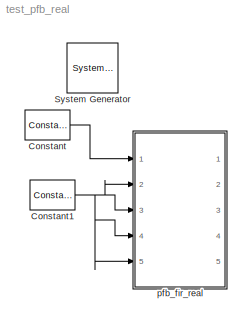
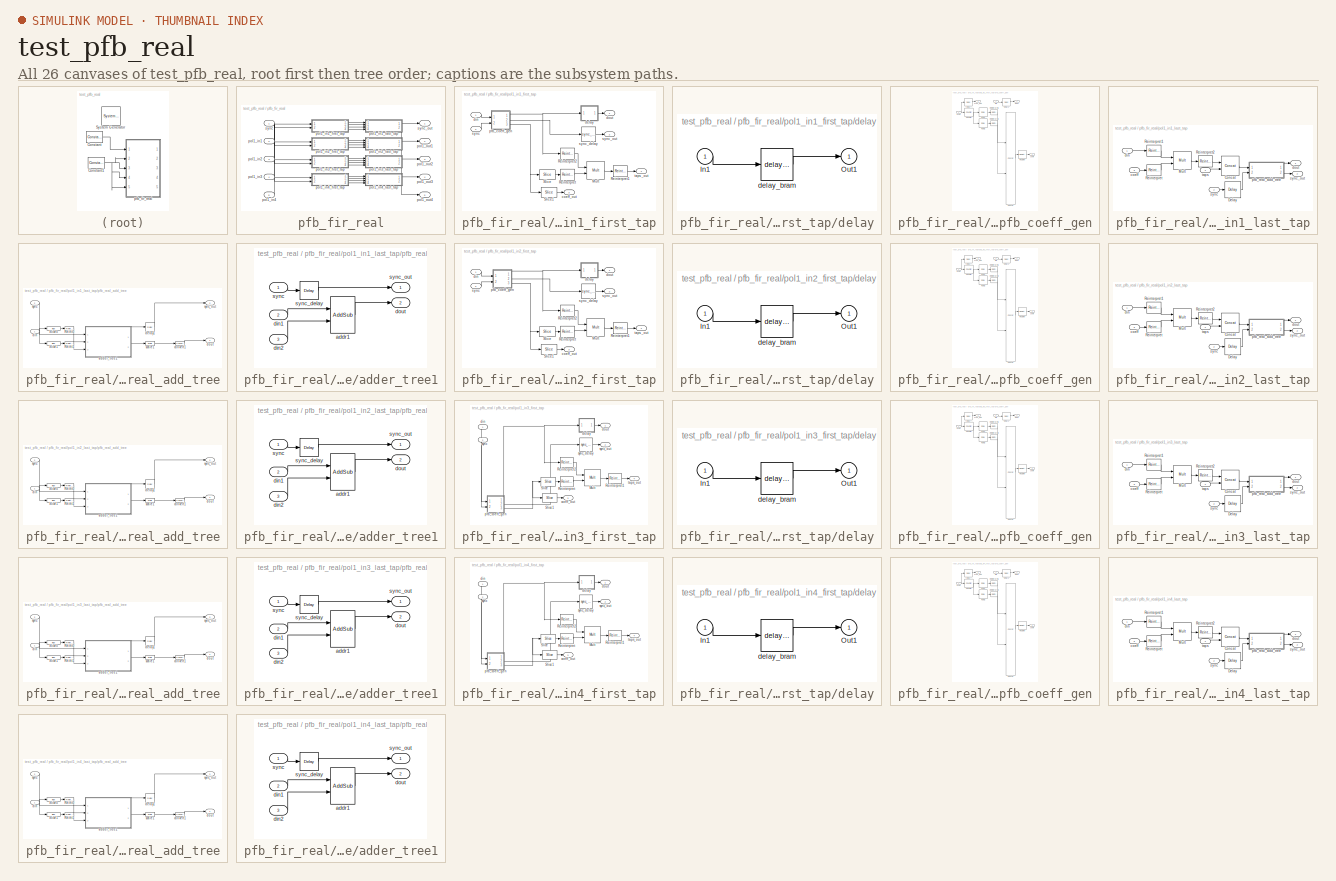
[diagram: thumbnail index - all 26 canvases of the model, root first then tree order]
MODEL test_pfb_real
KIND model
BLOCK [Reference]  System Generator  REF=xbsIndex_r3/ System Generator
  AttributesFormatString = System\\nGenerator
  Ports = []
  ShowPortLabels = on
  SourceBlock = xbsIndex_r3/ System Generator
  SourceType = Xilinx System Generator
  Tag = genX
  UserData = DataTag0
  UserDataPersistent = on
  core_generation = According to Block Masks
  dbl_ovrd = According to Block Masks
  deprecated_control = off
  directory = ./netlist
  eval_field = 0
  incr_netlist = off
  package = bg575
  part = xc2v1000
  run_coregen = off
  simulink_period = 1
  speed = -4
  synthesis_tool = XST
  sysclk_period = 100
  testbench = off
  trim_vbits = Everywhere in SubSystem
  xilinxfamily = Virtex2
BLOCK [Reference] Constant  REF=xbsIndex_r3/Constant
  Ports = [0, 1]
  SourceBlock = xbsIndex_r3/Constant
  SourceType = Xilinx Constant Block
  arith_type = Boolean
  bin_pt = 0
  carry = CIN
  const = 1
  dbl_ovrd = off
  equ = P=C
  explicit_period = on
  inp1 = P
  inp2 = PCIN>>17
  iostate = 0
  n_bits = 1
  opr = +
  opselect = C
  period = 1
BLOCK [Reference] Constant1  REF=xbsIndex_r3/Constant
  Ports = [0, 1]
  SourceBlock = xbsIndex_r3/Constant
  SourceType = Xilinx Constant Block
  arith_type = Signed  (2's comp)
  bin_pt = 7
  carry = CIN
  const = 1
  dbl_ovrd = off
  equ = P=C
  explicit_period = on
  inp1 = P
  inp2 = PCIN>>17
  iostate = 0
  n_bits = 8
  opr = +
  opselect = C
  period = 1
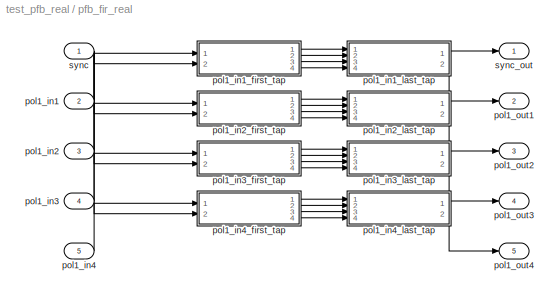
BLOCK [SubSystem] pfb_fir_real
  AncestorBlock = casper_library/PFBs/pfb_fir_real
  AttributesFormatString = taps=2, add_latency=1
  MaskCallbackString = ||||||||||||||
  MaskEnableString = on,on,on,on,on,on,on,on,on,on,on,on,on,on,on
  MaskIconFrame = on
  MaskIconOpaque = on
  MaskIconRotate = none
  MaskIconUnits = autoscale
  MaskInitialization = pfb_fir_real_init(gcb,...\n    'PFBSize', PFBSize,...\n    'TotalTaps', TotalTaps,...\n    'WindowType', WindowType,...\n    'n_inputs', n_inputs,...\n    'MakeBiplex', MakeBiplex,...\n    'BitWidthIn', BitWidthIn,...\n    'BitWidthOut', BitWidthOut,...\n    'CoeffBitWidth', CoeffBitWidth,...\n    'CoeffDistMem', CoeffDistMem,...\n    'CoeffRound', CoeffRound,...\n    'add_latency', add_latency,.....<+139ch>
  MaskPromptString = Size of PFB: (2^? pnts)|Total Number of Taps:|Windowing Function: |Number of Simultaneous Inputs: (2^?)|Make Biplex|Input Bitwidth:|Output Bitwidth:|Coefficient Bitwidth:|Use Distributed Memory for Coeffs|Round Coefficients|Add Latency|Mult Latency|BRAM Latency|Quantization Behavior|Bin Width Scaling (normal=1)
  MaskSelfModifiable = on
  MaskStyleString = edit,edit,popup(bartlett|barthannwin|blackman|blackmanharris|bohamwin|chebwin|flattopwin|gausswin|hamming|hann|kaiser|nuttallwin|parzenwin|rectwin|tukeywin|triang),edit,edit,edit,edit,edit,edit,edit,edit,edit,edit,popup(Truncate|Round  (unbiased: +/- Inf)|Round  (unbiased: Even Values)),edit
  MaskTabNameString = ,,,,,,,,,,,,,,
  MaskToolTipString = on,on,on,on,on,on,on,on,on,on,on,on,on,on,on
  MaskTunableValueString = on,on,on,on,on,on,on,on,on,on,on,on,on,on,on
  MaskType = pfb_fir_real
  MaskValueString = 8|2|hamming|2|0|8|18|8|1|0|1|2|2|Truncate|1
  MaskVarAliasString = ,,,,,,,,,,,,,,
  MaskVariables = PFBSize=@1;TotalTaps=@2;WindowType=&3;n_inputs=@4;MakeBiplex=@5;BitWidthIn=@6;BitWidthOut=@7;CoeffBitWidth=@8;CoeffDistMem=@9;CoeffRound=&10;add_latency=@11;mult_latency=@12;bram_latency=@13;quantization=&14;fwidth=@15;
  MaskVisibilityString = on,on,on,on,on,on,on,on,on,on,on,on,on,on,on
  MinAlgLoopOccurrences = off
  Ports = [5, 5]
  RTWSystemCode = Auto
  TreatAsAtomicUnit = off
  UserData = DataTag1
  UserDataPersistent = on
BLOCK [Inport] pfb_fir_real/pol1_in1
  IconDisplay = Port number
  LatchInput = off
  Port = 2
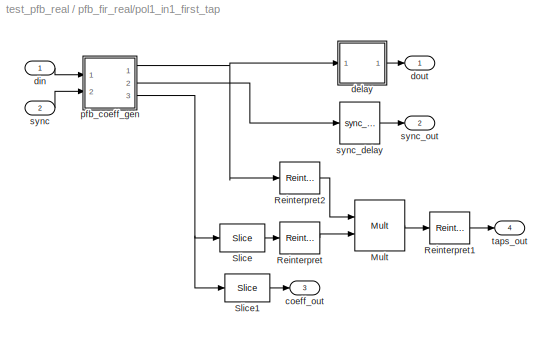
BLOCK [SubSystem] pfb_fir_real/pol1_in1_first_tap
  AncestorBlock = casper_library/PFBs/first_tap_real
  AttributesFormatString = input=0, taps=2
  MaskCallbackString = |||||||||||
  MaskEnableString = on,on,on,on,on,on,on,on,on,on,on,on
  MaskIconFrame = on
  MaskIconOpaque = on
  MaskIconRotate = none
  MaskIconUnits = autoscale
  MaskInitialization = first_tap_real_init(gcb,...\n    'nput', nput,...\n    'PFBSize', PFBSize,...\n    'CoeffBitWidth', CoeffBitWidth,...\n    'TotalTaps', TotalTaps,...\n    'BitWidthIn', BitWidthIn,...\n    'CoeffDistMem', CoeffDistMem,...\n    'CoeffRound', CoeffRound,...\n    'WindowType', WindowType,...\n    'mult_latency', mult_latency,...\n    'bram_latency', bram_latency,...\n    'n_inputs', n_inputs,...\n   ...<+19ch>  <repeated x4 — deduplicated; at blocks: pol1_in1_first_tap, pol1_in2_first_tap, pol1_in3_first_tap, pol1_in4_first_tap>
  MaskPromptString = This is input number:|Size of PFB: (2^? pnts)|Bitwidth of Coefficients:|Total Number of Taps:|Input Bitwidth:|Implement Coeff Gen in Distributed Memory:|Round Coefficients?|Windowing Function:|Mult Latency|BRAM Latency|Number of Simultaneous Inputs: (2^?)|Bit Width (normal=1)  <repeated x4 — deduplicated; at blocks: pol1_in1_first_tap, pol1_in2_first_tap, pol1_in3_first_tap, pol1_in4_first_tap>
  MaskSelfModifiable = on
  MaskStyleString = edit,edit,edit,edit,edit,edit,edit,popup(bartlett|barthannwin|blackman|blackmanharris|bohamwin|chebwin|flattopwin|gausswin|hamming|hann|kaiser|nuttallwin|parzenwin|rectwin|tukeywin|triang),edit,edit,edit,edit  <repeated x4 — deduplicated; at blocks: pol1_in1_first_tap, pol1_in2_first_tap, pol1_in3_first_tap, pol1_in4_first_tap>
  MaskTabNameString = ,,,,,,,,,,,
  MaskToolTipString = on,on,on,on,on,on,on,on,on,on,on,on
  MaskTunableValueString = on,on,on,on,on,on,on,on,on,on,on,on
  MaskType = first_tap_real
  MaskValueString = 0|8|8|2|8|1|0|hamming|2|2|2|1
  MaskVarAliasString = ,,,,,,,,,,,
  MaskVariables = nput=@1;PFBSize=@2;CoeffBitWidth=@3;TotalTaps=@4;BitWidthIn=@5;CoeffDistMem=@6;CoeffRound=@7;WindowType=&8;mult_latency=@9;bram_latency=@10;n_inputs=@11;fwidth=@12;
  MaskVisibilityString = on,on,on,on,on,on,on,on,on,on,on,on
  MinAlgLoopOccurrences = off
  Ports = [2, 4]
  RTWSystemCode = Auto
  TreatAsAtomicUnit = off
  UserData = DataTag2
  UserDataPersistent = on
BLOCK [Reference] pfb_fir_real/pol1_in1_first_tap/Mult  REF=xbsIndex_r3/Mult
  Ports = [2, 1]
  SourceBlock = xbsIndex_r3/Mult
  SourceType = Xilinx Multiplier
  arith_type = Signed  (2's comp)
  bin_pt = 2
  dbl_ovrd = off
  en = off
  explicit_period = off
  gen_core = off
  latency = mult_latency
  mult_type = Parallel
  n_bits = 8
  overflow = Wrap
  oversample = 2
  period = 1
  pipeline = on
  placement_style = Rectangular Shape
  precision = Full
  quantization = Truncate
  show_param = on
  use_embedded = on
  use_rpm = on
  xl_area = [0, 0, 0, 0, 0, 0, 0]
  xl_use_area = off
BLOCK [Reference] pfb_fir_real/pol1_in1_first_tap/Reinterpret  REF=xbsIndex_r3/Reinterpret
  Ports = [1, 1]
  SourceBlock = xbsIndex_r3/Reinterpret
  SourceType = Xilinx Type Reinterpreting Block
  arith_type = Signed  (2's comp)
  bin_pt = CoeffBitWidth - 1
  force_arith_type = on
  force_bin_pt = on
  force_valid = on
BLOCK [Reference] pfb_fir_real/pol1_in1_first_tap/Reinterpret1  REF=xbsIndex_r3/Reinterpret
  Ports = [1, 1]
  SourceBlock = xbsIndex_r3/Reinterpret
  SourceType = Xilinx Type Reinterpreting Block
  arith_type = Unsigned
  bin_pt = 0
  force_arith_type = on
  force_bin_pt = on
  force_valid = on
BLOCK [Reference] pfb_fir_real/pol1_in1_first_tap/Reinterpret2  REF=xbsIndex_r3/Reinterpret
  Ports = [1, 1]
  SourceBlock = xbsIndex_r3/Reinterpret
  SourceType = Xilinx Type Reinterpreting Block
  arith_type = Signed  (2's comp)
  bin_pt = BitWidthIn - 1
  force_arith_type = on
  force_bin_pt = on
  force_valid = on
BLOCK [Reference] pfb_fir_real/pol1_in1_first_tap/Slice  REF=xbsIndex_r3/Slice
  Ports = [1, 1]
  SourceBlock = xbsIndex_r3/Slice
  SourceType = Xilinx Slice Block
  base0 = LSB of Input
  base1 = MSB of Input
  bit0 = 0
  bit1 = 0
  boolean_output = off
  dbl_ovrd = off
  explicit_period = off
  mode = Lower Bit Location + Width
  nbits = CoeffBitWidth
  period = 1
BLOCK [Reference] pfb_fir_real/pol1_in1_first_tap/Slice1  REF=xbsIndex_r3/Slice
  Ports = [1, 1]
  SourceBlock = xbsIndex_r3/Slice
  SourceType = Xilinx Slice Block
  base0 = LSB of Input
  base1 = MSB of Input
  bit0 = CoeffBitWidth
  bit1 = 0
  boolean_output = off
  dbl_ovrd = off
  explicit_period = off
  mode = Two Bit Locations
  nbits = CoeffBitWidth * (TotalTaps - 1)
  period = 1
BLOCK [Outport] pfb_fir_real/pol1_in1_first_tap/coeff_out
  BusOutputAsStruct = off
  IconDisplay = Port number
  Port = 3
BLOCK [SubSystem] pfb_fir_real/pol1_in1_first_tap/delay
  AttributesFormatString = %<BlockChoice>
  BlockChoice = delay_bram
  MemberBlocks = delay_bram,delay_slr
  MinAlgLoopOccurrences = off
  Ports = [1, 1]
  RTWSystemCode = Auto
  TemplateBlock = casper_library/Delays/delay
  TreatAsAtomicUnit = off
BLOCK [Inport] pfb_fir_real/pol1_in1_first_tap/delay/In1
  IconDisplay = Port number
  LatchInput = off
  Port = 1
BLOCK [Outport] pfb_fir_real/pol1_in1_first_tap/delay/Out1
  BusOutputAsStruct = off
  IconDisplay = Port number
BLOCK [Reference] pfb_fir_real/pol1_in1_first_tap/delay/delay_bram  REF=casper_library/Delays/delay_bram  (lib defined in mdl_138b2fc3435f, mdl_4ed325b712b3, +2 more)
  DelayLen = 2^(PFBSize-n_inputs)
  Ports = [1, 1]
  ShowPortLabels = on
  SourceBlock = casper_library/Delays/delay_bram
  SourceType = delay_bram
  bram_latency = bram_latency
BLOCK [Inport] pfb_fir_real/pol1_in1_first_tap/din
  IconDisplay = Port number
  LatchInput = off
  Port = 1
BLOCK [Outport] pfb_fir_real/pol1_in1_first_tap/dout
  BusOutputAsStruct = off
  IconDisplay = Port number
BLOCK [SubSystem] pfb_fir_real/pol1_in1_first_tap/pfb_coeff_gen
  AncestorBlock = casper_library/PFBs/pfb_coeff_gen
  AttributesFormatString = PFBSize=8, n_inputs=2, taps=2
  MaskCallbackString = |||||||||
  MaskEnableString = on,on,on,on,on,on,on,on,on,on
  MaskIconFrame = on
  MaskIconOpaque = on
  MaskIconRotate = none
  MaskIconUnits = autoscale
  MaskInitialization = pfb_coeff_gen_init(gcb, ...\n    'PFBSize', PFBSize, ...\n    'CoeffBitWidth', CoeffBitWidth, ...\n    'CoeffRound', CoeffRound, ...\n    'TotalTaps', TotalTaps, ...\n    'CoeffDistMem', CoeffDistMem, ...\n    'WindowType', WindowType, ...\n    'bram_latency', bram_latency, ...\n    'n_inputs', n_inputs, ...\n    'nput', nput, ...\n    'fwidth', fwidth);  <repeated x4 — deduplicated; at blocks: pfb_coeff_gen>
  MaskPromptString = Size of PFB: (2^? pnts)|Bitwidth of Coefficients:|Total Number of Taps:|Implement Coeff Gen in Distributed Memory|Round-off Coefficients|Windowing Function: |BRAM Latency|Number of Simultaneous Inputs: (2^?)|This is input number:|Bin Width (normal=1)  <repeated x4 — deduplicated; at blocks: pfb_coeff_gen>
  MaskSelfModifiable = on
  MaskStyleString = edit,edit,edit,edit,edit,edit,edit,edit,edit,edit
  MaskTabNameString = ,,,,,,,,,
  MaskToolTipString = on,on,on,on,on,on,on,on,on,on
  MaskTunableValueString = on,on,on,on,on,on,on,on,on,on
  MaskType = pfb_coeff_gen
  MaskValueString = 8|8|2|1|0|hamming|2|2|0|1
  MaskVarAliasString = ,,,,,,,,,
  MaskVariables = PFBSize=@1;CoeffBitWidth=@2;TotalTaps=@3;CoeffDistMem=@4;CoeffRound=@5;WindowType=&6;bram_latency=@7;n_inputs=@8;nput=@9;fwidth=@10;
  MaskVisibilityString = on,on,on,on,on,on,on,on,on,on
  MinAlgLoopOccurrences = off
  Ports = [2, 3]
  RTWSystemCode = Auto
  TreatAsAtomicUnit = off
  UserData = DataTag3
  UserDataPersistent = on
BLOCK [Reference] pfb_fir_real/pol1_in1_first_tap/pfb_coeff_gen/Concat  REF=xbsIndex_r3/Concat
  Ports = [2, 1]
  SourceBlock = xbsIndex_r3/Concat
  SourceType = Xilinx Bus Concatenator
  dbl_ovrd = off
  explicit_period = off
  num_inputs = 2
  period = 1
BLOCK [Reference] pfb_fir_real/pol1_in1_first_tap/pfb_coeff_gen/Counter  REF=xbsIndex_r3/Counter
  Ports = [1, 1]
  SourceBlock = xbsIndex_r3/Counter
  SourceType = Xilinx Counter Block
  arith_type = Unsigned
  bin_pt = 0
  cnt_by_val = 1
  cnt_to = Inf
  cnt_type = Free Running
  dbl_ovrd = off
  en = off
  explicit_period = on
  gen_core = off
  load_pin = off
  n_bits = 6
  operation = Up
  period = 1
  rst = on
  show_param = off
  start_count = 0
  use_rpm = on
  xl_area = [0, 0, 0, 0, 0, 0, 0]
  xl_use_area = off
BLOCK [Reference] pfb_fir_real/pol1_in1_first_tap/pfb_coeff_gen/Delay  REF=xbsIndex_r3/Delay
  Ports = [1, 1]
  SourceBlock = xbsIndex_r3/Delay
  SourceType = Xilinx Delay Block
  accept_only_valid = off
  dbl_ovrd = off
  en = off
  explicit_period = off
  init_zero = on
  latency = bram_latency+1
  period = 1
  reg_retiming = off
  show_param = off
  xl_area = [0, 0, 0, 0, 0, 0, 0]
  xl_use_area = off
BLOCK [Reference] pfb_fir_real/pol1_in1_first_tap/pfb_coeff_gen/Delay1  REF=xbsIndex_r3/Delay
  Ports = [1, 1]
  SourceBlock = xbsIndex_r3/Delay
  SourceType = Xilinx Delay Block
  accept_only_valid = off
  dbl_ovrd = off
  en = off
  explicit_period = off
  init_zero = on
  latency = 3
  period = 1
  reg_retiming = off
  show_param = off
  xl_area = [0, 0, 0, 0, 0, 0, 0]
  xl_use_area = off
BLOCK [Reference] pfb_fir_real/pol1_in1_first_tap/pfb_coeff_gen/ROM1  REF=xbsIndex_r3/ROM
  Ports = [1, 1]
  SourceBlock = xbsIndex_r3/ROM
  SourceType = Xilinx Single Port Read-Only Memory
  arith_type = Signed  (2's comp)
  bin_pt = 7
  dbl_ovrd = off
  depth = 64
  distributed_mem = on
  en = off
  explicit_period = off
  gen_core = off
  initVector = [3.1185374660155e-018 0.00127815735504101 0.00264811863393232 0.00416515054543771 0.00588688863344944 0.00787288618468741 0.0101841371720346 0.0128825767444044 0.0160305629990354 0.0196903439686699 0.0239235139223682 0.028790463213112 0.0343498260065343 0.0406579302919667 0.0477682546087423 0.0557308959167806 0.0645920530007106 0.0743935297212042 0.0851722623161638 0.0969598748085952 0.10978226639...<+773ch>
  init_reg = 0
  init_zero = on
  latency = 2
  n_bits = 8
  period = 1
  rst = off
  show_param = on
  use_rpm = on
  xl_area = [0, 0, 0, 0, 0, 0, 0]
  xl_use_area = off
BLOCK [Reference] pfb_fir_real/pol1_in1_first_tap/pfb_coeff_gen/ROM2  REF=xbsIndex_r3/ROM
  Ports = [1, 1]
  SourceBlock = xbsIndex_r3/ROM
  SourceType = Xilinx Single Port Read-Only Memory
  arith_type = Signed  (2's comp)
  bin_pt = 7
  dbl_ovrd = off
  depth = 64
  distributed_mem = on
  en = off
  explicit_period = off
  gen_core = off
  initVector = [0.999991306705082 0.998894756357992 0.995888339224687 0.9909864992533 0.984212756819853 0.975599555098869 0.96518804831354 0.953027833431119 0.939176627286339 0.923699891517155 0.906670408079912 0.888167808472082 0.868278060127262 0.847092913756494 0.824709315689756 0.801228789519622 0.776756791563554 0.751402044840572 0.725275856400738 0.698491422950947 0.671163129787278 0.643405848072019 0.6153...<+768ch>
  init_reg = 0
  init_zero = on
  latency = 2
  n_bits = 8
  period = 1
  rst = off
  show_param = on
  use_rpm = on
  xl_area = [0, 0, 0, 0, 0, 0, 0]
  xl_use_area = off
BLOCK [Reference] pfb_fir_real/pol1_in1_first_tap/pfb_coeff_gen/Register  REF=xbsIndex_r3/Register
  Ports = [1, 1]
  SourceBlock = xbsIndex_r3/Register
  SourceType = Xilinx Register Block
  dbl_ovrd = off
  en = off
  explicit_period = off
  init = 0
  out_en = off
  period = 1
  reg_only_valid = off
  rst = off
  show_param = off
  xl_area = [0, 0, 0, 0, 0, 0, 0]
  xl_use_area = off
BLOCK [Reference] pfb_fir_real/pol1_in1_first_tap/pfb_coeff_gen/Reinterpret1  REF=xbsIndex_r3/Reinterpret
  Ports = [1, 1]
  SourceBlock = xbsIndex_r3/Reinterpret
  SourceType = Xilinx Type Reinterpreting Block
  arith_type = Unsigned
  bin_pt = 0
  force_arith_type = on
  force_bin_pt = on
  force_valid = on
BLOCK [Reference] pfb_fir_real/pol1_in1_first_tap/pfb_coeff_gen/Reinterpret2  REF=xbsIndex_r3/Reinterpret
  Ports = [1, 1]
  SourceBlock = xbsIndex_r3/Reinterpret
  SourceType = Xilinx Type Reinterpreting Block
  arith_type = Unsigned
  bin_pt = 0
  force_arith_type = on
  force_bin_pt = on
  force_valid = on
BLOCK [Outport] pfb_fir_real/pol1_in1_first_tap/pfb_coeff_gen/coeff
  BusOutputAsStruct = off
  IconDisplay = Port number
  Port = 3
BLOCK [Inport] pfb_fir_real/pol1_in1_first_tap/pfb_coeff_gen/din
  IconDisplay = Port number
  LatchInput = off
  Port = 1
BLOCK [Outport] pfb_fir_real/pol1_in1_first_tap/pfb_coeff_gen/dout
  BusOutputAsStruct = off
  IconDisplay = Port number
BLOCK [Inport] pfb_fir_real/pol1_in1_first_tap/pfb_coeff_gen/sync
  IconDisplay = Port number
  LatchInput = off
  Port = 2
BLOCK [Outport] pfb_fir_real/pol1_in1_first_tap/pfb_coeff_gen/sync_out
  BusOutputAsStruct = off
  IconDisplay = Port number
  Port = 2
BLOCK [Inport] pfb_fir_real/pol1_in1_first_tap/sync
  IconDisplay = Port number
  LatchInput = off
  Port = 2
BLOCK [Reference] pfb_fir_real/pol1_in1_first_tap/sync_delay  REF=casper_library/Delays/sync_delay  (lib defined in mdl_138b2fc3435f, mdl_4ed325b712b3, +2 more)
  DelayLen = 2^(PFBSize-n_inputs)
  Ports = [1, 1]
  ShowPortLabels = on
  SourceBlock = casper_library/Delays/sync_delay
  SourceType = sync_delay
BLOCK [Outport] pfb_fir_real/pol1_in1_first_tap/sync_out
  BusOutputAsStruct = off
  IconDisplay = Port number
  Port = 2
BLOCK [Outport] pfb_fir_real/pol1_in1_first_tap/taps_out
  BusOutputAsStruct = off
  IconDisplay = Port number
  Port = 4
BLOCK [SubSystem] pfb_fir_real/pol1_in1_last_tap
  AncestorBlock = casper_library/PFBs/last_tap_real
  AttributesFormatString = taps=2
  MaskCallbackString = ||||||
  MaskEnableString = on,on,on,on,on,on,on
  MaskIconFrame = on
  MaskIconOpaque = on
  MaskIconRotate = none
  MaskIconUnits = autoscale
  MaskInitialization = last_tap_real_init(gcb,...\n    'TotalTaps', TotalTaps,...\n    'BitWidthIn', BitWidthIn,...\n    'BitWidthOut', BitWidthOut,...\n    'CoeffBitWidth', CoeffBitWidth,...\n    'add_latency', add_latency,...\n    'mult_latency', mult_latency,...\n    'quantization', quantization);  <repeated x4 — deduplicated; at blocks: pol1_in1_last_tap, pol1_in2_last_tap, pol1_in3_last_tap, pol1_in4_last_tap>
  MaskPromptString = Total Number of Taps:|Input Bitwidth:|Output Bitwidth:|Coeff Bitwidth:|Add Latency|Mult Latency|Quantization Behavior
  MaskSelfModifiable = on
  MaskStyleString = edit,edit,edit,edit,edit,edit,popup(Truncate|Round  (unbiased: +/- Inf)|Round  (unbiased: Even Values))
  MaskTabNameString = ,,,,,,
  MaskToolTipString = on,on,on,on,on,on,on
  MaskTunableValueString = on,on,on,on,on,on,on
  MaskType = last_tap_real
  MaskValueString = 2|8|18|8|1|2|Truncate
  MaskVarAliasString = ,,,,,,
  MaskVariables = TotalTaps=@1;BitWidthIn=@2;BitWidthOut=@3;CoeffBitWidth=@4;add_latency=@5;mult_latency=@6;quantization=&7;
  MaskVisibilityString = on,on,on,on,on,on,on
  MinAlgLoopOccurrences = off
  Ports = [4, 2]
  RTWSystemCode = Auto
  TreatAsAtomicUnit = off
  UserData = DataTag4
  UserDataPersistent = on
BLOCK [Reference] pfb_fir_real/pol1_in1_last_tap/Concat  REF=xbsIndex_r3/Concat
  Ports = [2, 1]
  SourceBlock = xbsIndex_r3/Concat
  SourceType = Xilinx Bus Concatenator
  dbl_ovrd = off
  explicit_period = off
  num_inputs = 2
  period = 1
BLOCK [Reference] pfb_fir_real/pol1_in1_last_tap/Delay  REF=xbsIndex_r3/Delay
  Ports = [1, 1]
  SourceBlock = xbsIndex_r3/Delay
  SourceType = Xilinx Delay Block
  accept_only_valid = off
  dbl_ovrd = off
  en = off
  explicit_period = off
  init_zero = on
  latency = mult_latency
  period = 1
  reg_retiming = off
  show_param = off
  xl_area = [0, 0, 0, 0, 0, 0, 0]
  xl_use_area = off
BLOCK [Reference] pfb_fir_real/pol1_in1_last_tap/Mult  REF=xbsIndex_r3/Mult
  Ports = [2, 1]
  SourceBlock = xbsIndex_r3/Mult
  SourceType = Xilinx Multiplier
  arith_type = Signed  (2's comp)
  bin_pt = 2
  dbl_ovrd = off
  en = off
  explicit_period = off
  gen_core = off
  latency = mult_latency
  mult_type = Parallel
  n_bits = 8
  overflow = Wrap
  oversample = 2
  period = 1
  pipeline = on
  placement_style = Rectangular Shape
  precision = Full
  quantization = Truncate
  show_param = on
  use_embedded = on
  use_rpm = on
  xl_area = [0, 0, 0, 0, 0, 0, 0]
  xl_use_area = off
BLOCK [Reference] pfb_fir_real/pol1_in1_last_tap/Reinterpret  REF=xbsIndex_r3/Reinterpret
  Ports = [1, 1]
  SourceBlock = xbsIndex_r3/Reinterpret
  SourceType = Xilinx Type Reinterpreting Block
  arith_type = Signed  (2's comp)
  bin_pt = CoeffBitWidth - 1
  force_arith_type = on
  force_bin_pt = on
  force_valid = on
BLOCK [Reference] pfb_fir_real/pol1_in1_last_tap/Reinterpret1  REF=xbsIndex_r3/Reinterpret
  Ports = [1, 1]
  SourceBlock = xbsIndex_r3/Reinterpret
  SourceType = Xilinx Type Reinterpreting Block
  arith_type = Signed  (2's comp)
  bin_pt = BitWidthIn - 1
  force_arith_type = on
  force_bin_pt = on
  force_valid = on
BLOCK [Reference] pfb_fir_real/pol1_in1_last_tap/Reinterpret2  REF=xbsIndex_r3/Reinterpret
  Ports = [1, 1]
  SourceBlock = xbsIndex_r3/Reinterpret
  SourceType = Xilinx Type Reinterpreting Block
  arith_type = Unsigned
  bin_pt = 0
  force_arith_type = on
  force_bin_pt = on
  force_valid = on
BLOCK [Inport] pfb_fir_real/pol1_in1_last_tap/coeff
  IconDisplay = Port number
  LatchInput = off
  Port = 3
BLOCK [Inport] pfb_fir_real/pol1_in1_last_tap/din
  IconDisplay = Port number
  LatchInput = off
  Port = 1
BLOCK [Outport] pfb_fir_real/pol1_in1_last_tap/dout
  BusOutputAsStruct = off
  IconDisplay = Port number
BLOCK [SubSystem] pfb_fir_real/pol1_in1_last_tap/pfb_real_add_tree
  AttributesFormatString = taps=2, add_latency=1
  MaskCallbackString = |||||
  MaskEnableString = on,on,on,on,on,on
  MaskIconFrame = on
  MaskIconOpaque = on
  MaskIconRotate = none
  MaskIconUnits = autoscale
  MaskInitialization = pfb_real_add_tree_init(gcb, ...\n    'TotalTaps', TotalTaps, ...\n    'BitWidthIn', BitWidthIn, ...\n    'BitWidthOut', BitWidthOut, ...\n    'CoeffBitWidth', CoeffBitWidth, ...\n    'add_latency', add_latency, ...\n    'quantization', quantization);  <repeated x4 — deduplicated; at blocks: pfb_real_add_tree>
  MaskPromptString = Total Number of Taps:|Input Bitwidth:|Output Bitwidth:|Coeff Bitwidth:|Add Latency|Quantization Behavior
  MaskSelfModifiable = on
  MaskStyleString = edit,edit,edit,edit,edit,edit
  MaskTabNameString = ,,,,,
  MaskToolTipString = on,on,on,on,on,on
  MaskTunableValueString = on,on,on,on,on,on
  MaskType = pfb_real_add_tree
  MaskValueString = 2|8|18|8|1|Truncate
  MaskVarAliasString = ,,,,,
  MaskVariables = TotalTaps=@1;BitWidthIn=@2;BitWidthOut=@3;CoeffBitWidth=@4;add_latency=@5;quantization=&6;
  MaskVisibilityString = on,on,on,on,on,on
  MinAlgLoopOccurrences = off
  Ports = [2, 2]
  RTWSystemCode = Auto
  TreatAsAtomicUnit = off
  UserData = DataTag5
  UserDataPersistent = on
BLOCK [Reference] pfb_fir_real/pol1_in1_last_tap/pfb_real_add_tree/Reint0  REF=xbsIndex_r3/Reinterpret
  Ports = [1, 1]
  SourceBlock = xbsIndex_r3/Reinterpret
  SourceType = Xilinx Type Reinterpreting Block
  arith_type = Signed  (2's comp)
  bin_pt = CoeffBitWidth + BitWidthIn - 2
  force_arith_type = on
  force_bin_pt = on
  force_valid = on
BLOCK [Reference] pfb_fir_real/pol1_in1_last_tap/pfb_real_add_tree/Reint1  REF=xbsIndex_r3/Reinterpret
  Ports = [1, 1]
  SourceBlock = xbsIndex_r3/Reinterpret
  SourceType = Xilinx Type Reinterpreting Block
  arith_type = Signed  (2's comp)
  bin_pt = CoeffBitWidth + BitWidthIn - 2
  force_arith_type = on
  force_bin_pt = on
  force_valid = on
BLOCK [Reference] pfb_fir_real/pol1_in1_last_tap/pfb_real_add_tree/Slice0  REF=xbsIndex_r3/Slice
  Ports = [1, 1]
  SourceBlock = xbsIndex_r3/Slice
  SourceType = Xilinx Slice Block
  base0 = MSB of Input
  base1 = MSB of Input
  bit0 = 0
  bit1 = -0*(CoeffBitWidth + BitWidthIn)
  boolean_output = off
  dbl_ovrd = off
  explicit_period = off
  mode = Upper Bit Location + Width
  nbits = CoeffBitWidth + BitWidthIn
  period = 1
BLOCK [Reference] pfb_fir_real/pol1_in1_last_tap/pfb_real_add_tree/Slice1  REF=xbsIndex_r3/Slice
  Ports = [1, 1]
  SourceBlock = xbsIndex_r3/Slice
  SourceType = Xilinx Slice Block
  base0 = MSB of Input
  base1 = MSB of Input
  bit0 = 0
  bit1 = -1*(CoeffBitWidth + BitWidthIn)
  boolean_output = off
  dbl_ovrd = off
  explicit_period = off
  mode = Upper Bit Location + Width
  nbits = CoeffBitWidth + BitWidthIn
  period = 1
BLOCK [SubSystem] pfb_fir_real/pol1_in1_last_tap/pfb_real_add_tree/adder_tree1
  AncestorBlock = casper_library/Misc/adder_tree
  AttributesFormatString = latency 1
  MaskCallbackString = |
  MaskDescription = Sums all inputs using a tree of adds and delays.
  MaskEnableString = on,on
  MaskHelp = eval('xlWeb([getenv(''MLIB_ROOT''), ''<path>''])')
  MaskIconFrame = on
  MaskIconOpaque = on
  MaskIconRotate = none
  MaskIconUnits = autoscale
  MaskInitialization = adder_tree_init(gcb, ...\n    'n_inputs', n_inputs, ...\n    'latency', latency);
  MaskPromptString = Number of Inputs|Add Latency
  MaskSelfModifiable = on
  MaskStyleString = edit,edit
  MaskTabNameString = ,
  MaskToolTipString = on,on
  MaskTunableValueString = on,on
  MaskType = adder_tree
  MaskValueString = 2|1
  MaskVarAliasString = ,
  MaskVariables = n_inputs=@1;latency=@2;
  MaskVisibilityString = on,on
  MinAlgLoopOccurrences = off
  Ports = [3, 2]
  RTWSystemCode = Auto
  TreatAsAtomicUnit = off
  UserData = DataTag6
  UserDataPersistent = on
BLOCK [Reference] pfb_fir_real/pol1_in1_last_tap/pfb_real_add_tree/adder_tree1/addr1  REF=xbsIndex_r3/AddSub
  Ports = [2, 1]
  SourceBlock = xbsIndex_r3/AddSub
  SourceType = Xilinx Adder/Subtractor
  arith_type = Unsigned
  bin_pt = 2
  dbl_ovrd = off
  en = off
  explicit_period = off
  gen_core = off
  latency = 1
  mode = Addition
  n_bits = 8
  overflow = Wrap
  period = 1
  pipeline = on
  precision = Full
  quantization = Truncate
  show_param = off
  use_carryin = off
  use_carryout = off
  use_core = on
  use_rpm = on
  xl_area = [0, 0, 0, 0, 0, 0, 0]
  xl_use_area = off
BLOCK [Inport] pfb_fir_real/pol1_in1_last_tap/pfb_real_add_tree/adder_tree1/din1
  IconDisplay = Port number
  LatchInput = off
  Port = 2
BLOCK [Inport] pfb_fir_real/pol1_in1_last_tap/pfb_real_add_tree/adder_tree1/din2
  IconDisplay = Port number
  LatchInput = off
  Port = 3
BLOCK [Outport] pfb_fir_real/pol1_in1_last_tap/pfb_real_add_tree/adder_tree1/dout
  BusOutputAsStruct = off
  IconDisplay = Port number
  Port = 2
BLOCK [Inport] pfb_fir_real/pol1_in1_last_tap/pfb_real_add_tree/adder_tree1/sync
  IconDisplay = Port number
  LatchInput = off
  Port = 1
BLOCK [Reference] pfb_fir_real/pol1_in1_last_tap/pfb_real_add_tree/adder_tree1/sync_delay  REF=xbsIndex_r3/Delay
  Ports = [1, 1]
  SourceBlock = xbsIndex_r3/Delay
  SourceType = Xilinx Delay Block
  accept_only_valid = off
  dbl_ovrd = off
  en = off
  explicit_period = off
  init_zero = on
  latency = 1
  period = 1
  reg_retiming = off
  show_param = off
  xl_area = [0, 0, 0, 0, 0, 0, 0]
  xl_use_area = off
BLOCK [Outport] pfb_fir_real/pol1_in1_last_tap/pfb_real_add_tree/adder_tree1/sync_out
  BusOutputAsStruct = off
  IconDisplay = Port number
BLOCK [Reference] pfb_fir_real/pol1_in1_last_tap/pfb_real_add_tree/convert1  REF=xbsIndex_r3/Convert
  Ports = [1, 1]
  SourceBlock = xbsIndex_r3/Convert
  SourceType = Xilinx Converter Block
  arith_type = Signed  (2's comp)
  bin_pt = BitWidthOut-1
  dbl_ovrd = off
  explicit_period = off
  inserted_by_tool = off
  latency = add_latency
  n_bits = BitWidthOut
  overflow = Saturate
  period = 1
  pipeline = off
  quantization = Truncate
  show_param = off
  xl_area = [0, 0, 0, 0, 0, 0, 0]
  xl_use_area = off
BLOCK [Reference] pfb_fir_real/pol1_in1_last_tap/pfb_real_add_tree/delay1  REF=xbsIndex_r3/Delay
  Ports = [1, 1]
  SourceBlock = xbsIndex_r3/Delay
  SourceType = Xilinx Delay Block
  accept_only_valid = off
  dbl_ovrd = off
  en = off
  explicit_period = off
  init_zero = on
  latency = 1
  period = 1
  reg_retiming = off
  show_param = off
  xl_area = [0, 0, 0, 0, 0, 0, 0]
  xl_use_area = off
BLOCK [Inport] pfb_fir_real/pol1_in1_last_tap/pfb_real_add_tree/din
  IconDisplay = Port number
  LatchInput = off
  Port = 1
BLOCK [Outport] pfb_fir_real/pol1_in1_last_tap/pfb_real_add_tree/dout
  BusOutputAsStruct = off
  IconDisplay = Port number
BLOCK [Reference] pfb_fir_real/pol1_in1_last_tap/pfb_real_add_tree/scale1  REF=xbsIndex_r3/Scale
  Ports = [1, 1]
  SourceBlock = xbsIndex_r3/Scale
  SourceType = Xilinx Scaling Block
  dbl_ovrd = off
  explicit_period = off
  period = 1
  scale_factor = -2
BLOCK [Inport] pfb_fir_real/pol1_in1_last_tap/pfb_real_add_tree/sync
  IconDisplay = Port number
  LatchInput = off
  Port = 2
BLOCK [Outport] pfb_fir_real/pol1_in1_last_tap/pfb_real_add_tree/sync_out
  BusOutputAsStruct = off
  IconDisplay = Port number
  Port = 2
BLOCK [Inport] pfb_fir_real/pol1_in1_last_tap/sync
  IconDisplay = Port number
  LatchInput = off
  Port = 2
BLOCK [Outport] pfb_fir_real/pol1_in1_last_tap/sync_out
  BusOutputAsStruct = off
  IconDisplay = Port number
  Port = 2
BLOCK [Inport] pfb_fir_real/pol1_in1_last_tap/taps
  IconDisplay = Port number
  LatchInput = off
  Port = 4
BLOCK [Inport] pfb_fir_real/pol1_in2
  IconDisplay = Port number
  LatchInput = off
  Port = 3
BLOCK [SubSystem] pfb_fir_real/pol1_in2_first_tap
  AncestorBlock = casper_library/PFBs/first_tap_real
  AttributesFormatString = input=1, taps=2
  MaskCallbackString = |||||||||||
  MaskEnableString = on,on,on,on,on,on,on,on,on,on,on,on
  MaskIconFrame = on
  MaskIconOpaque = on
  MaskIconRotate = none
  MaskIconUnits = autoscale
  MaskSelfModifiable = on
  MaskTabNameString = ,,,,,,,,,,,
  MaskToolTipString = on,on,on,on,on,on,on,on,on,on,on,on
  MaskTunableValueString = on,on,on,on,on,on,on,on,on,on,on,on
  MaskType = first_tap_real
  MaskValueString = 1|8|8|2|8|1|0|hamming|2|2|2|1
  MaskVarAliasString = ,,,,,,,,,,,
  MaskVariables = nput=@1;PFBSize=@2;CoeffBitWidth=@3;TotalTaps=@4;BitWidthIn=@5;CoeffDistMem=@6;CoeffRound=@7;WindowType=&8;mult_latency=@9;bram_latency=@10;n_inputs=@11;fwidth=@12;
  MaskVisibilityString = on,on,on,on,on,on,on,on,on,on,on,on
  MinAlgLoopOccurrences = off
  Ports = [2, 4]
  RTWSystemCode = Auto
  TreatAsAtomicUnit = off
  UserData = DataTag7
  UserDataPersistent = on
BLOCK [Reference] pfb_fir_real/pol1_in2_first_tap/Mult  REF=xbsIndex_r3/Mult
  Ports = [2, 1]
  SourceBlock = xbsIndex_r3/Mult
  SourceType = Xilinx Multiplier
  arith_type = Signed  (2's comp)
  bin_pt = 2
  dbl_ovrd = off
  en = off
  explicit_period = off
  gen_core = off
  latency = mult_latency
  mult_type = Parallel
  n_bits = 8
  overflow = Wrap
  oversample = 2
  period = 1
  pipeline = on
  placement_style = Rectangular Shape
  precision = Full
  quantization = Truncate
  show_param = on
  use_embedded = on
  use_rpm = on
  xl_area = [0, 0, 0, 0, 0, 0, 0]
  xl_use_area = off
BLOCK [Reference] pfb_fir_real/pol1_in2_first_tap/Reinterpret  REF=xbsIndex_r3/Reinterpret
  Ports = [1, 1]
  SourceBlock = xbsIndex_r3/Reinterpret
  SourceType = Xilinx Type Reinterpreting Block
  arith_type = Signed  (2's comp)
  bin_pt = CoeffBitWidth - 1
  force_arith_type = on
  force_bin_pt = on
  force_valid = on
BLOCK [Reference] pfb_fir_real/pol1_in2_first_tap/Reinterpret1  REF=xbsIndex_r3/Reinterpret
  Ports = [1, 1]
  SourceBlock = xbsIndex_r3/Reinterpret
  SourceType = Xilinx Type Reinterpreting Block
  arith_type = Unsigned
  bin_pt = 0
  force_arith_type = on
  force_bin_pt = on
  force_valid = on
BLOCK [Reference] pfb_fir_real/pol1_in2_first_tap/Reinterpret2  REF=xbsIndex_r3/Reinterpret
  Ports = [1, 1]
  SourceBlock = xbsIndex_r3/Reinterpret
  SourceType = Xilinx Type Reinterpreting Block
  arith_type = Signed  (2's comp)
  bin_pt = BitWidthIn - 1
  force_arith_type = on
  force_bin_pt = on
  force_valid = on
BLOCK [Reference] pfb_fir_real/pol1_in2_first_tap/Slice  REF=xbsIndex_r3/Slice
  Ports = [1, 1]
  SourceBlock = xbsIndex_r3/Slice
  SourceType = Xilinx Slice Block
  base0 = LSB of Input
  base1 = MSB of Input
  bit0 = 0
  bit1 = 0
  boolean_output = off
  dbl_ovrd = off
  explicit_period = off
  mode = Lower Bit Location + Width
  nbits = CoeffBitWidth
  period = 1
BLOCK [Reference] pfb_fir_real/pol1_in2_first_tap/Slice1  REF=xbsIndex_r3/Slice
  Ports = [1, 1]
  SourceBlock = xbsIndex_r3/Slice
  SourceType = Xilinx Slice Block
  base0 = LSB of Input
  base1 = MSB of Input
  bit0 = CoeffBitWidth
  bit1 = 0
  boolean_output = off
  dbl_ovrd = off
  explicit_period = off
  mode = Two Bit Locations
  nbits = CoeffBitWidth * (TotalTaps - 1)
  period = 1
BLOCK [Outport] pfb_fir_real/pol1_in2_first_tap/coeff_out
  BusOutputAsStruct = off
  IconDisplay = Port number
  Port = 3
BLOCK [SubSystem] pfb_fir_real/pol1_in2_first_tap/delay
  AttributesFormatString = %<BlockChoice>
  BlockChoice = delay_bram
  MemberBlocks = delay_bram,delay_slr
  MinAlgLoopOccurrences = off
  Ports = [1, 1]
  RTWSystemCode = Auto
  TemplateBlock = casper_library/Delays/delay
  TreatAsAtomicUnit = off
BLOCK [Inport] pfb_fir_real/pol1_in2_first_tap/delay/In1
  IconDisplay = Port number
  LatchInput = off
  Port = 1
BLOCK [Outport] pfb_fir_real/pol1_in2_first_tap/delay/Out1
  BusOutputAsStruct = off
  IconDisplay = Port number
BLOCK [Reference] pfb_fir_real/pol1_in2_first_tap/delay/delay_bram  REF=casper_library/Delays/delay_bram  (lib defined in mdl_138b2fc3435f, mdl_4ed325b712b3, +2 more)
  DelayLen = 2^(PFBSize-n_inputs)
  Ports = [1, 1]
  ShowPortLabels = on
  SourceBlock = casper_library/Delays/delay_bram
  SourceType = delay_bram
  bram_latency = bram_latency
BLOCK [Inport] pfb_fir_real/pol1_in2_first_tap/din
  IconDisplay = Port number
  LatchInput = off
  Port = 1
BLOCK [Outport] pfb_fir_real/pol1_in2_first_tap/dout
  BusOutputAsStruct = off
  IconDisplay = Port number
BLOCK [SubSystem] pfb_fir_real/pol1_in2_first_tap/pfb_coeff_gen
  AncestorBlock = casper_library/PFBs/pfb_coeff_gen
  AttributesFormatString = PFBSize=8, n_inputs=2, taps=2
  MaskCallbackString = |||||||||
  MaskEnableString = on,on,on,on,on,on,on,on,on,on
  MaskIconFrame = on
  MaskIconOpaque = on
  MaskIconRotate = none
  MaskIconUnits = autoscale
  MaskSelfModifiable = on
  MaskStyleString = edit,edit,edit,edit,edit,edit,edit,edit,edit,edit
  MaskTabNameString = ,,,,,,,,,
  MaskToolTipString = on,on,on,on,on,on,on,on,on,on
  MaskTunableValueString = on,on,on,on,on,on,on,on,on,on
  MaskType = pfb_coeff_gen
  MaskValueString = 8|8|2|1|0|hamming|2|2|1|1
  MaskVarAliasString = ,,,,,,,,,
  MaskVariables = PFBSize=@1;CoeffBitWidth=@2;TotalTaps=@3;CoeffDistMem=@4;CoeffRound=@5;WindowType=&6;bram_latency=@7;n_inputs=@8;nput=@9;fwidth=@10;
  MaskVisibilityString = on,on,on,on,on,on,on,on,on,on
  MinAlgLoopOccurrences = off
  Ports = [2, 3]
  RTWSystemCode = Auto
  TreatAsAtomicUnit = off
  UserData = DataTag8
  UserDataPersistent = on
BLOCK [Reference] pfb_fir_real/pol1_in2_first_tap/pfb_coeff_gen/Concat  REF=xbsIndex_r3/Concat
  Ports = [2, 1]
  SourceBlock = xbsIndex_r3/Concat
  SourceType = Xilinx Bus Concatenator
  dbl_ovrd = off
  explicit_period = off
  num_inputs = 2
  period = 1
BLOCK [Reference] pfb_fir_real/pol1_in2_first_tap/pfb_coeff_gen/Counter  REF=xbsIndex_r3/Counter
  Ports = [1, 1]
  SourceBlock = xbsIndex_r3/Counter
  SourceType = Xilinx Counter Block
  arith_type = Unsigned
  bin_pt = 0
  cnt_by_val = 1
  cnt_to = Inf
  cnt_type = Free Running
  dbl_ovrd = off
  en = off
  explicit_period = on
  gen_core = off
  load_pin = off
  n_bits = 6
  operation = Up
  period = 1
  rst = on
  show_param = off
  start_count = 0
  use_rpm = on
  xl_area = [0, 0, 0, 0, 0, 0, 0]
  xl_use_area = off
BLOCK [Reference] pfb_fir_real/pol1_in2_first_tap/pfb_coeff_gen/Delay  REF=xbsIndex_r3/Delay
  Ports = [1, 1]
  SourceBlock = xbsIndex_r3/Delay
  SourceType = Xilinx Delay Block
  accept_only_valid = off
  dbl_ovrd = off
  en = off
  explicit_period = off
  init_zero = on
  latency = bram_latency+1
  period = 1
  reg_retiming = off
  show_param = off
  xl_area = [0, 0, 0, 0, 0, 0, 0]
  xl_use_area = off
BLOCK [Reference] pfb_fir_real/pol1_in2_first_tap/pfb_coeff_gen/Delay1  REF=xbsIndex_r3/Delay
  Ports = [1, 1]
  SourceBlock = xbsIndex_r3/Delay
  SourceType = Xilinx Delay Block
  accept_only_valid = off
  dbl_ovrd = off
  en = off
  explicit_period = off
  init_zero = on
  latency = 3
  period = 1
  reg_retiming = off
  show_param = off
  xl_area = [0, 0, 0, 0, 0, 0, 0]
  xl_use_area = off
BLOCK [Reference] pfb_fir_real/pol1_in2_first_tap/pfb_coeff_gen/ROM1  REF=xbsIndex_r3/ROM
  Ports = [1, 1]
  SourceBlock = xbsIndex_r3/ROM
  SourceType = Xilinx Single Port Read-Only Memory
  arith_type = Signed  (2's comp)
  bin_pt = 7
  dbl_ovrd = off
  depth = 64
  distributed_mem = on
  en = off
  explicit_period = off
  gen_core = off
  initVector = [0.000313853976538334 0.00160992675829287 0.00301137446337296 0.00457409675424194 0.00635625197236197 0.00841779923897206 0.0108200154466539 0.0136249907113866 0.0168951060728681 0.0206924974200388 0.0250785097772046 0.0301131462123735 0.0358545157221069 0.0423582845053347 0.0496771350614465 0.0578602375351112 0.0669527376815312 0.0769952657413487 0.0880234703946249 0.100067581808938 0.11315200760...<+776ch>
  init_reg = 0
  init_zero = on
  latency = 2
  n_bits = 8
  period = 1
  rst = off
  show_param = on
  use_rpm = on
  xl_area = [0, 0, 0, 0, 0, 0, 0]
  xl_use_area = off
BLOCK [Reference] pfb_fir_real/pol1_in2_first_tap/pfb_coeff_gen/ROM2  REF=xbsIndex_r3/ROM
  Ports = [1, 1]
  SourceBlock = xbsIndex_r3/ROM
  SourceType = Xilinx Single Port Read-Only Memory
  arith_type = Signed  (2's comp)
  bin_pt = 7
  dbl_ovrd = off
  depth = 64
  distributed_mem = on
  en = off
  explicit_period = off
  gen_core = off
  initVector = [0.999896664767983 0.998321794081455 0.994839810498821 0.989467438252662 0.982230445114466 0.973163474111657 0.96230981747575 0.94972113449289 0.935457115341528 0.919585093399109 0.902179608877273 0.883321927000286 0.863099514271342 0.841605476673626 0.818937963925073 0.79519954414565 0.770496553501805 0.74493842556299 0.718637005238492 0.691705852258414 0.664259539219615 0.636412949235707 0.60828...<+769ch>
  init_reg = 0
  init_zero = on
  latency = 2
  n_bits = 8
  period = 1
  rst = off
  show_param = on
  use_rpm = on
  xl_area = [0, 0, 0, 0, 0, 0, 0]
  xl_use_area = off
BLOCK [Reference] pfb_fir_real/pol1_in2_first_tap/pfb_coeff_gen/Register  REF=xbsIndex_r3/Register
  Ports = [1, 1]
  SourceBlock = xbsIndex_r3/Register
  SourceType = Xilinx Register Block
  dbl_ovrd = off
  en = off
  explicit_period = off
  init = 0
  out_en = off
  period = 1
  reg_only_valid = off
  rst = off
  show_param = off
  xl_area = [0, 0, 0, 0, 0, 0, 0]
  xl_use_area = off
BLOCK [Reference] pfb_fir_real/pol1_in2_first_tap/pfb_coeff_gen/Reinterpret1  REF=xbsIndex_r3/Reinterpret
  Ports = [1, 1]
  SourceBlock = xbsIndex_r3/Reinterpret
  SourceType = Xilinx Type Reinterpreting Block
  arith_type = Unsigned
  bin_pt = 0
  force_arith_type = on
  force_bin_pt = on
  force_valid = on
BLOCK [Reference] pfb_fir_real/pol1_in2_first_tap/pfb_coeff_gen/Reinterpret2  REF=xbsIndex_r3/Reinterpret
  Ports = [1, 1]
  SourceBlock = xbsIndex_r3/Reinterpret
  SourceType = Xilinx Type Reinterpreting Block
  arith_type = Unsigned
  bin_pt = 0
  force_arith_type = on
  force_bin_pt = on
  force_valid = on
BLOCK [Outport] pfb_fir_real/pol1_in2_first_tap/pfb_coeff_gen/coeff
  BusOutputAsStruct = off
  IconDisplay = Port number
  Port = 3
BLOCK [Inport] pfb_fir_real/pol1_in2_first_tap/pfb_coeff_gen/din
  IconDisplay = Port number
  LatchInput = off
  Port = 1
BLOCK [Outport] pfb_fir_real/pol1_in2_first_tap/pfb_coeff_gen/dout
  BusOutputAsStruct = off
  IconDisplay = Port number
BLOCK [Inport] pfb_fir_real/pol1_in2_first_tap/pfb_coeff_gen/sync
  IconDisplay = Port number
  LatchInput = off
  Port = 2
BLOCK [Outport] pfb_fir_real/pol1_in2_first_tap/pfb_coeff_gen/sync_out
  BusOutputAsStruct = off
  IconDisplay = Port number
  Port = 2
BLOCK [Inport] pfb_fir_real/pol1_in2_first_tap/sync
  IconDisplay = Port number
  LatchInput = off
  Port = 2
BLOCK [Reference] pfb_fir_real/pol1_in2_first_tap/sync_delay  REF=casper_library/Delays/sync_delay  (lib defined in mdl_138b2fc3435f, mdl_4ed325b712b3, +2 more)
  DelayLen = 2^(PFBSize-n_inputs)
  Ports = [1, 1]
  ShowPortLabels = on
  SourceBlock = casper_library/Delays/sync_delay
  SourceType = sync_delay
BLOCK [Outport] pfb_fir_real/pol1_in2_first_tap/sync_out
  BusOutputAsStruct = off
  IconDisplay = Port number
  Port = 2
BLOCK [Outport] pfb_fir_real/pol1_in2_first_tap/taps_out
  BusOutputAsStruct = off
  IconDisplay = Port number
  Port = 4
BLOCK [SubSystem] pfb_fir_real/pol1_in2_last_tap
  AncestorBlock = casper_library/PFBs/last_tap_real
  AttributesFormatString = taps=2
  MaskCallbackString = ||||||
  MaskEnableString = on,on,on,on,on,on,on
  MaskIconFrame = on
  MaskIconOpaque = on
  MaskIconRotate = none
  MaskIconUnits = autoscale
  MaskPromptString = Total Number of Taps:|Input Bitwidth:|Output Bitwidth:|Coeff Bitwidth:|Add Latency|Mult Latency|Quantization Behavior
  MaskSelfModifiable = on
  MaskStyleString = edit,edit,edit,edit,edit,edit,popup(Truncate|Round  (unbiased: +/- Inf)|Round  (unbiased: Even Values))
  MaskTabNameString = ,,,,,,
  MaskToolTipString = on,on,on,on,on,on,on
  MaskTunableValueString = on,on,on,on,on,on,on
  MaskType = last_tap_real
  MaskValueString = 2|8|18|8|1|2|Truncate
  MaskVarAliasString = ,,,,,,
  MaskVariables = TotalTaps=@1;BitWidthIn=@2;BitWidthOut=@3;CoeffBitWidth=@4;add_latency=@5;mult_latency=@6;quantization=&7;
  MaskVisibilityString = on,on,on,on,on,on,on
  MinAlgLoopOccurrences = off
  Ports = [4, 2]
  RTWSystemCode = Auto
  TreatAsAtomicUnit = off
  UserData = DataTag9
  UserDataPersistent = on
BLOCK [Reference] pfb_fir_real/pol1_in2_last_tap/Concat  REF=xbsIndex_r3/Concat
  Ports = [2, 1]
  SourceBlock = xbsIndex_r3/Concat
  SourceType = Xilinx Bus Concatenator
  dbl_ovrd = off
  explicit_period = off
  num_inputs = 2
  period = 1
BLOCK [Reference] pfb_fir_real/pol1_in2_last_tap/Delay  REF=xbsIndex_r3/Delay
  Ports = [1, 1]
  SourceBlock = xbsIndex_r3/Delay
  SourceType = Xilinx Delay Block
  accept_only_valid = off
  dbl_ovrd = off
  en = off
  explicit_period = off
  init_zero = on
  latency = mult_latency
  period = 1
  reg_retiming = off
  show_param = off
  xl_area = [0, 0, 0, 0, 0, 0, 0]
  xl_use_area = off
BLOCK [Reference] pfb_fir_real/pol1_in2_last_tap/Mult  REF=xbsIndex_r3/Mult
  Ports = [2, 1]
  SourceBlock = xbsIndex_r3/Mult
  SourceType = Xilinx Multiplier
  arith_type = Signed  (2's comp)
  bin_pt = 2
  dbl_ovrd = off
  en = off
  explicit_period = off
  gen_core = off
  latency = mult_latency
  mult_type = Parallel
  n_bits = 8
  overflow = Wrap
  oversample = 2
  period = 1
  pipeline = on
  placement_style = Rectangular Shape
  precision = Full
  quantization = Truncate
  show_param = on
  use_embedded = on
  use_rpm = on
  xl_area = [0, 0, 0, 0, 0, 0, 0]
  xl_use_area = off
BLOCK [Reference] pfb_fir_real/pol1_in2_last_tap/Reinterpret  REF=xbsIndex_r3/Reinterpret
  Ports = [1, 1]
  SourceBlock = xbsIndex_r3/Reinterpret
  SourceType = Xilinx Type Reinterpreting Block
  arith_type = Signed  (2's comp)
  bin_pt = CoeffBitWidth - 1
  force_arith_type = on
  force_bin_pt = on
  force_valid = on
BLOCK [Reference] pfb_fir_real/pol1_in2_last_tap/Reinterpret1  REF=xbsIndex_r3/Reinterpret
  Ports = [1, 1]
  SourceBlock = xbsIndex_r3/Reinterpret
  SourceType = Xilinx Type Reinterpreting Block
  arith_type = Signed  (2's comp)
  bin_pt = BitWidthIn - 1
  force_arith_type = on
  force_bin_pt = on
  force_valid = on
BLOCK [Reference] pfb_fir_real/pol1_in2_last_tap/Reinterpret2  REF=xbsIndex_r3/Reinterpret
  Ports = [1, 1]
  SourceBlock = xbsIndex_r3/Reinterpret
  SourceType = Xilinx Type Reinterpreting Block
  arith_type = Unsigned
  bin_pt = 0
  force_arith_type = on
  force_bin_pt = on
  force_valid = on
BLOCK [Inport] pfb_fir_real/pol1_in2_last_tap/coeff
  IconDisplay = Port number
  LatchInput = off
  Port = 3
BLOCK [Inport] pfb_fir_real/pol1_in2_last_tap/din
  IconDisplay = Port number
  LatchInput = off
  Port = 1
BLOCK [Outport] pfb_fir_real/pol1_in2_last_tap/dout
  BusOutputAsStruct = off
  IconDisplay = Port number
BLOCK [SubSystem] pfb_fir_real/pol1_in2_last_tap/pfb_real_add_tree
  AttributesFormatString = taps=2, add_latency=1
  MaskCallbackString = |||||
  MaskEnableString = on,on,on,on,on,on
  MaskIconFrame = on
  MaskIconOpaque = on
  MaskIconRotate = none
  MaskIconUnits = autoscale
  MaskPromptString = Total Number of Taps:|Input Bitwidth:|Output Bitwidth:|Coeff Bitwidth:|Add Latency|Quantization Behavior
  MaskSelfModifiable = on
  MaskStyleString = edit,edit,edit,edit,edit,edit
  MaskTabNameString = ,,,,,
  MaskToolTipString = on,on,on,on,on,on
  MaskTunableValueString = on,on,on,on,on,on
  MaskType = pfb_real_add_tree
  MaskValueString = 2|8|18|8|1|Truncate
  MaskVarAliasString = ,,,,,
  MaskVariables = TotalTaps=@1;BitWidthIn=@2;BitWidthOut=@3;CoeffBitWidth=@4;add_latency=@5;quantization=&6;
  MaskVisibilityString = on,on,on,on,on,on
  MinAlgLoopOccurrences = off
  Ports = [2, 2]
  RTWSystemCode = Auto
  TreatAsAtomicUnit = off
  UserData = DataTag10
  UserDataPersistent = on
BLOCK [Reference] pfb_fir_real/pol1_in2_last_tap/pfb_real_add_tree/Reint0  REF=xbsIndex_r3/Reinterpret
  Ports = [1, 1]
  SourceBlock = xbsIndex_r3/Reinterpret
  SourceType = Xilinx Type Reinterpreting Block
  arith_type = Signed  (2's comp)
  bin_pt = CoeffBitWidth + BitWidthIn - 2
  force_arith_type = on
  force_bin_pt = on
  force_valid = on
BLOCK [Reference] pfb_fir_real/pol1_in2_last_tap/pfb_real_add_tree/Reint1  REF=xbsIndex_r3/Reinterpret
  Ports = [1, 1]
  SourceBlock = xbsIndex_r3/Reinterpret
  SourceType = Xilinx Type Reinterpreting Block
  arith_type = Signed  (2's comp)
  bin_pt = CoeffBitWidth + BitWidthIn - 2
  force_arith_type = on
  force_bin_pt = on
  force_valid = on
BLOCK [Reference] pfb_fir_real/pol1_in2_last_tap/pfb_real_add_tree/Slice0  REF=xbsIndex_r3/Slice
  Ports = [1, 1]
  SourceBlock = xbsIndex_r3/Slice
  SourceType = Xilinx Slice Block
  base0 = MSB of Input
  base1 = MSB of Input
  bit0 = 0
  bit1 = -0*(CoeffBitWidth + BitWidthIn)
  boolean_output = off
  dbl_ovrd = off
  explicit_period = off
  mode = Upper Bit Location + Width
  nbits = CoeffBitWidth + BitWidthIn
  period = 1
BLOCK [Reference] pfb_fir_real/pol1_in2_last_tap/pfb_real_add_tree/Slice1  REF=xbsIndex_r3/Slice
  Ports = [1, 1]
  SourceBlock = xbsIndex_r3/Slice
  SourceType = Xilinx Slice Block
  base0 = MSB of Input
  base1 = MSB of Input
  bit0 = 0
  bit1 = -1*(CoeffBitWidth + BitWidthIn)
  boolean_output = off
  dbl_ovrd = off
  explicit_period = off
  mode = Upper Bit Location + Width
  nbits = CoeffBitWidth + BitWidthIn
  period = 1
BLOCK [SubSystem] pfb_fir_real/pol1_in2_last_tap/pfb_real_add_tree/adder_tree1
  AncestorBlock = casper_library/Misc/adder_tree
  AttributesFormatString = latency 1
  MaskCallbackString = |
  MaskDescription = Sums all inputs using a tree of adds and delays.
  MaskEnableString = on,on
  MaskHelp = eval('xlWeb([getenv(''MLIB_ROOT''), ''<path>''])')
  MaskIconFrame = on
  MaskIconOpaque = on
  MaskIconRotate = none
  MaskIconUnits = autoscale
  MaskInitialization = adder_tree_init(gcb, ...\n    'n_inputs', n_inputs, ...\n    'latency', latency);
  MaskPromptString = Number of Inputs|Add Latency
  MaskSelfModifiable = on
  MaskStyleString = edit,edit
  MaskTabNameString = ,
  MaskToolTipString = on,on
  MaskTunableValueString = on,on
  MaskType = adder_tree
  MaskValueString = 2|1
  MaskVarAliasString = ,
  MaskVariables = n_inputs=@1;latency=@2;
  MaskVisibilityString = on,on
  MinAlgLoopOccurrences = off
  Ports = [3, 2]
  RTWSystemCode = Auto
  TreatAsAtomicUnit = off
  UserData = DataTag11
  UserDataPersistent = on
BLOCK [Reference] pfb_fir_real/pol1_in2_last_tap/pfb_real_add_tree/adder_tree1/addr1  REF=xbsIndex_r3/AddSub
  Ports = [2, 1]
  SourceBlock = xbsIndex_r3/AddSub
  SourceType = Xilinx Adder/Subtractor
  arith_type = Unsigned
  bin_pt = 2
  dbl_ovrd = off
  en = off
  explicit_period = off
  gen_core = off
  latency = 1
  mode = Addition
  n_bits = 8
  overflow = Wrap
  period = 1
  pipeline = on
  precision = Full
  quantization = Truncate
  show_param = off
  use_carryin = off
  use_carryout = off
  use_core = on
  use_rpm = on
  xl_area = [0, 0, 0, 0, 0, 0, 0]
  xl_use_area = off
BLOCK [Inport] pfb_fir_real/pol1_in2_last_tap/pfb_real_add_tree/adder_tree1/din1
  IconDisplay = Port number
  LatchInput = off
  Port = 2
BLOCK [Inport] pfb_fir_real/pol1_in2_last_tap/pfb_real_add_tree/adder_tree1/din2
  IconDisplay = Port number
  LatchInput = off
  Port = 3
BLOCK [Outport] pfb_fir_real/pol1_in2_last_tap/pfb_real_add_tree/adder_tree1/dout
  BusOutputAsStruct = off
  IconDisplay = Port number
  Port = 2
BLOCK [Inport] pfb_fir_real/pol1_in2_last_tap/pfb_real_add_tree/adder_tree1/sync
  IconDisplay = Port number
  LatchInput = off
  Port = 1
BLOCK [Reference] pfb_fir_real/pol1_in2_last_tap/pfb_real_add_tree/adder_tree1/sync_delay  REF=xbsIndex_r3/Delay
  Ports = [1, 1]
  SourceBlock = xbsIndex_r3/Delay
  SourceType = Xilinx Delay Block
  accept_only_valid = off
  dbl_ovrd = off
  en = off
  explicit_period = off
  init_zero = on
  latency = 1
  period = 1
  reg_retiming = off
  show_param = off
  xl_area = [0, 0, 0, 0, 0, 0, 0]
  xl_use_area = off
BLOCK [Outport] pfb_fir_real/pol1_in2_last_tap/pfb_real_add_tree/adder_tree1/sync_out
  BusOutputAsStruct = off
  IconDisplay = Port number
BLOCK [Reference] pfb_fir_real/pol1_in2_last_tap/pfb_real_add_tree/convert1  REF=xbsIndex_r3/Convert
  Ports = [1, 1]
  SourceBlock = xbsIndex_r3/Convert
  SourceType = Xilinx Converter Block
  arith_type = Signed  (2's comp)
  bin_pt = BitWidthOut-1
  dbl_ovrd = off
  explicit_period = off
  inserted_by_tool = off
  latency = add_latency
  n_bits = BitWidthOut
  overflow = Saturate
  period = 1
  pipeline = off
  quantization = Truncate
  show_param = off
  xl_area = [0, 0, 0, 0, 0, 0, 0]
  xl_use_area = off
BLOCK [Reference] pfb_fir_real/pol1_in2_last_tap/pfb_real_add_tree/delay1  REF=xbsIndex_r3/Delay
  Ports = [1, 1]
  SourceBlock = xbsIndex_r3/Delay
  SourceType = Xilinx Delay Block
  accept_only_valid = off
  dbl_ovrd = off
  en = off
  explicit_period = off
  init_zero = on
  latency = 1
  period = 1
  reg_retiming = off
  show_param = off
  xl_area = [0, 0, 0, 0, 0, 0, 0]
  xl_use_area = off
BLOCK [Inport] pfb_fir_real/pol1_in2_last_tap/pfb_real_add_tree/din
  IconDisplay = Port number
  LatchInput = off
  Port = 1
BLOCK [Outport] pfb_fir_real/pol1_in2_last_tap/pfb_real_add_tree/dout
  BusOutputAsStruct = off
  IconDisplay = Port number
BLOCK [Reference] pfb_fir_real/pol1_in2_last_tap/pfb_real_add_tree/scale1  REF=xbsIndex_r3/Scale
  Ports = [1, 1]
  SourceBlock = xbsIndex_r3/Scale
  SourceType = Xilinx Scaling Block
  dbl_ovrd = off
  explicit_period = off
  period = 1
  scale_factor = -2
BLOCK [Inport] pfb_fir_real/pol1_in2_last_tap/pfb_real_add_tree/sync
  IconDisplay = Port number
  LatchInput = off
  Port = 2
BLOCK [Outport] pfb_fir_real/pol1_in2_last_tap/pfb_real_add_tree/sync_out
  BusOutputAsStruct = off
  IconDisplay = Port number
  Port = 2
BLOCK [Inport] pfb_fir_real/pol1_in2_last_tap/sync
  IconDisplay = Port number
  LatchInput = off
  Port = 2
BLOCK [Outport] pfb_fir_real/pol1_in2_last_tap/sync_out
  BusOutputAsStruct = off
  IconDisplay = Port number
  Port = 2
BLOCK [Inport] pfb_fir_real/pol1_in2_last_tap/taps
  IconDisplay = Port number
  LatchInput = off
  Port = 4
BLOCK [Inport] pfb_fir_real/pol1_in3
  IconDisplay = Port number
  LatchInput = off
  Port = 4
BLOCK [SubSystem] pfb_fir_real/pol1_in3_first_tap
  AncestorBlock = casper_library/PFBs/first_tap_real
  AttributesFormatString = input=2, taps=2
  MaskCallbackString = |||||||||||
  MaskEnableString = on,on,on,on,on,on,on,on,on,on,on,on
  MaskIconFrame = on
  MaskIconOpaque = on
  MaskIconRotate = none
  MaskIconUnits = autoscale
  MaskSelfModifiable = on
  MaskTabNameString = ,,,,,,,,,,,
  MaskToolTipString = on,on,on,on,on,on,on,on,on,on,on,on
  MaskTunableValueString = on,on,on,on,on,on,on,on,on,on,on,on
  MaskType = first_tap_real
  MaskValueString = 2|8|8|2|8|1|0|hamming|2|2|2|1
  MaskVarAliasString = ,,,,,,,,,,,
  MaskVariables = nput=@1;PFBSize=@2;CoeffBitWidth=@3;TotalTaps=@4;BitWidthIn=@5;CoeffDistMem=@6;CoeffRound=@7;WindowType=&8;mult_latency=@9;bram_latency=@10;n_inputs=@11;fwidth=@12;
  MaskVisibilityString = on,on,on,on,on,on,on,on,on,on,on,on
  MinAlgLoopOccurrences = off
  Ports = [2, 4]
  RTWSystemCode = Auto
  TreatAsAtomicUnit = off
  UserData = DataTag12
  UserDataPersistent = on
BLOCK [Reference] pfb_fir_real/pol1_in3_first_tap/Mult  REF=xbsIndex_r3/Mult
  Ports = [2, 1]
  SourceBlock = xbsIndex_r3/Mult
  SourceType = Xilinx Multiplier
  arith_type = Signed  (2's comp)
  bin_pt = 2
  dbl_ovrd = off
  en = off
  explicit_period = off
  gen_core = off
  latency = mult_latency
  mult_type = Parallel
  n_bits = 8
  overflow = Wrap
  oversample = 2
  period = 1
  pipeline = on
  placement_style = Rectangular Shape
  precision = Full
  quantization = Truncate
  show_param = on
  use_embedded = on
  use_rpm = on
  xl_area = [0, 0, 0, 0, 0, 0, 0]
  xl_use_area = off
BLOCK [Reference] pfb_fir_real/pol1_in3_first_tap/Reinterpret  REF=xbsIndex_r3/Reinterpret
  Ports = [1, 1]
  SourceBlock = xbsIndex_r3/Reinterpret
  SourceType = Xilinx Type Reinterpreting Block
  arith_type = Signed  (2's comp)
  bin_pt = CoeffBitWidth - 1
  force_arith_type = on
  force_bin_pt = on
  force_valid = on
BLOCK [Reference] pfb_fir_real/pol1_in3_first_tap/Reinterpret1  REF=xbsIndex_r3/Reinterpret
  Ports = [1, 1]
  SourceBlock = xbsIndex_r3/Reinterpret
  SourceType = Xilinx Type Reinterpreting Block
  arith_type = Unsigned
  bin_pt = 0
  force_arith_type = on
  force_bin_pt = on
  force_valid = on
BLOCK [Reference] pfb_fir_real/pol1_in3_first_tap/Reinterpret2  REF=xbsIndex_r3/Reinterpret
  Ports = [1, 1]
  SourceBlock = xbsIndex_r3/Reinterpret
  SourceType = Xilinx Type Reinterpreting Block
  arith_type = Signed  (2's comp)
  bin_pt = BitWidthIn - 1
  force_arith_type = on
  force_bin_pt = on
  force_valid = on
BLOCK [Reference] pfb_fir_real/pol1_in3_first_tap/Slice  REF=xbsIndex_r3/Slice
  Ports = [1, 1]
  SourceBlock = xbsIndex_r3/Slice
  SourceType = Xilinx Slice Block
  base0 = LSB of Input
  base1 = MSB of Input
  bit0 = 0
  bit1 = 0
  boolean_output = off
  dbl_ovrd = off
  explicit_period = off
  mode = Lower Bit Location + Width
  nbits = CoeffBitWidth
  period = 1
BLOCK [Reference] pfb_fir_real/pol1_in3_first_tap/Slice1  REF=xbsIndex_r3/Slice
  Ports = [1, 1]
  SourceBlock = xbsIndex_r3/Slice
  SourceType = Xilinx Slice Block
  base0 = LSB of Input
  base1 = MSB of Input
  bit0 = CoeffBitWidth
  bit1 = 0
  boolean_output = off
  dbl_ovrd = off
  explicit_period = off
  mode = Two Bit Locations
  nbits = CoeffBitWidth * (TotalTaps - 1)
  period = 1
BLOCK [Outport] pfb_fir_real/pol1_in3_first_tap/coeff_out
  BusOutputAsStruct = off
  IconDisplay = Port number
  Port = 3
BLOCK [SubSystem] pfb_fir_real/pol1_in3_first_tap/delay
  AttributesFormatString = %<BlockChoice>
  BlockChoice = delay_bram
  MemberBlocks = delay_bram,delay_slr
  MinAlgLoopOccurrences = off
  Ports = [1, 1]
  RTWSystemCode = Auto
  TemplateBlock = casper_library/Delays/delay
  TreatAsAtomicUnit = off
BLOCK [Inport] pfb_fir_real/pol1_in3_first_tap/delay/In1
  IconDisplay = Port number
  LatchInput = off
  Port = 1
BLOCK [Outport] pfb_fir_real/pol1_in3_first_tap/delay/Out1
  BusOutputAsStruct = off
  IconDisplay = Port number
BLOCK [Reference] pfb_fir_real/pol1_in3_first_tap/delay/delay_bram  REF=casper_library/Delays/delay_bram  (lib defined in mdl_138b2fc3435f, mdl_4ed325b712b3, +2 more)
  DelayLen = 2^(PFBSize-n_inputs)
  Ports = [1, 1]
  ShowPortLabels = on
  SourceBlock = casper_library/Delays/delay_bram
  SourceType = delay_bram
  bram_latency = bram_latency
BLOCK [Inport] pfb_fir_real/pol1_in3_first_tap/din
  IconDisplay = Port number
  LatchInput = off
  Port = 1
BLOCK [Outport] pfb_fir_real/pol1_in3_first_tap/dout
  BusOutputAsStruct = off
  IconDisplay = Port number
BLOCK [SubSystem] pfb_fir_real/pol1_in3_first_tap/pfb_coeff_gen
  AncestorBlock = casper_library/PFBs/pfb_coeff_gen
  AttributesFormatString = PFBSize=8, n_inputs=2, taps=2
  MaskCallbackString = |||||||||
  MaskEnableString = on,on,on,on,on,on,on,on,on,on
  MaskIconFrame = on
  MaskIconOpaque = on
  MaskIconRotate = none
  MaskIconUnits = autoscale
  MaskSelfModifiable = on
  MaskStyleString = edit,edit,edit,edit,edit,edit,edit,edit,edit,edit
  MaskTabNameString = ,,,,,,,,,
  MaskToolTipString = on,on,on,on,on,on,on,on,on,on
  MaskTunableValueString = on,on,on,on,on,on,on,on,on,on
  MaskType = pfb_coeff_gen
  MaskValueString = 8|8|2|1|0|hamming|2|2|2|1
  MaskVarAliasString = ,,,,,,,,,
  MaskVariables = PFBSize=@1;CoeffBitWidth=@2;TotalTaps=@3;CoeffDistMem=@4;CoeffRound=@5;WindowType=&6;bram_latency=@7;n_inputs=@8;nput=@9;fwidth=@10;
  MaskVisibilityString = on,on,on,on,on,on,on,on,on,on
  MinAlgLoopOccurrences = off
  Ports = [2, 3]
  RTWSystemCode = Auto
  TreatAsAtomicUnit = off
  UserData = DataTag13
  UserDataPersistent = on
BLOCK [Reference] pfb_fir_real/pol1_in3_first_tap/pfb_coeff_gen/Concat  REF=xbsIndex_r3/Concat
  Ports = [2, 1]
  SourceBlock = xbsIndex_r3/Concat
  SourceType = Xilinx Bus Concatenator
  dbl_ovrd = off
  explicit_period = off
  num_inputs = 2
  period = 1
BLOCK [Reference] pfb_fir_real/pol1_in3_first_tap/pfb_coeff_gen/Counter  REF=xbsIndex_r3/Counter
  Ports = [1, 1]
  SourceBlock = xbsIndex_r3/Counter
  SourceType = Xilinx Counter Block
  arith_type = Unsigned
  bin_pt = 0
  cnt_by_val = 1
  cnt_to = Inf
  cnt_type = Free Running
  dbl_ovrd = off
  en = off
  explicit_period = on
  gen_core = off
  load_pin = off
  n_bits = 6
  operation = Up
  period = 1
  rst = on
  show_param = off
  start_count = 0
  use_rpm = on
  xl_area = [0, 0, 0, 0, 0, 0, 0]
  xl_use_area = off
BLOCK [Reference] pfb_fir_real/pol1_in3_first_tap/pfb_coeff_gen/Delay  REF=xbsIndex_r3/Delay
  Ports = [1, 1]
  SourceBlock = xbsIndex_r3/Delay
  SourceType = Xilinx Delay Block
  accept_only_valid = off
  dbl_ovrd = off
  en = off
  explicit_period = off
  init_zero = on
  latency = bram_latency+1
  period = 1
  reg_retiming = off
  show_param = off
  xl_area = [0, 0, 0, 0, 0, 0, 0]
  xl_use_area = off
BLOCK [Reference] pfb_fir_real/pol1_in3_first_tap/pfb_coeff_gen/Delay1  REF=xbsIndex_r3/Delay
  Ports = [1, 1]
  SourceBlock = xbsIndex_r3/Delay
  SourceType = Xilinx Delay Block
  accept_only_valid = off
  dbl_ovrd = off
  en = off
  explicit_period = off
  init_zero = on
  latency = 3
  period = 1
  reg_retiming = off
  show_param = off
  xl_area = [0, 0, 0, 0, 0, 0, 0]
  xl_use_area = off
BLOCK [Reference] pfb_fir_real/pol1_in3_first_tap/pfb_coeff_gen/ROM1  REF=xbsIndex_r3/ROM
  Ports = [1, 1]
  SourceBlock = xbsIndex_r3/ROM
  SourceType = Xilinx Single Port Read-Only Memory
  arith_type = Signed  (2's comp)
  bin_pt = 7
  dbl_ovrd = off
  depth = 64
  distributed_mem = on
  en = off
  explicit_period = off
  gen_core = off
  initVector = [0.000630953074967074 0.00194826894833786 0.00338469890746931 0.00499674871201254 0.00684307086604839 0.00898400011986041 0.0114810647329688 0.0143964771252502 0.0177926077539941 0.0217314462363914 0.0262740538874815 0.0314800119615337 0.0374068699689719 0.0441095984903377 0.0516400509227496 0.0600464385724883 0.0693728234496303 0.0796586330272857 0.0909382010994727 0.103240338708793 0.11658793891...<+774ch>
  init_reg = 0
  init_zero = on
  latency = 2
  n_bits = 8
  period = 1
  rst = off
  show_param = on
  use_rpm = on
  xl_area = [0, 0, 0, 0, 0, 0, 0]
  xl_use_area = off
BLOCK [Reference] pfb_fir_real/pol1_in3_first_tap/pfb_coeff_gen/ROM2  REF=xbsIndex_r3/ROM
  Ports = [1, 1]
  SourceBlock = xbsIndex_r3/ROM
  SourceType = Xilinx Single Port Read-Only Memory
  arith_type = Signed  (2's comp)
  bin_pt = 7
  dbl_ovrd = off
  depth = 64
  distributed_mem = on
  en = off
  explicit_period = off
  gen_core = off
  initVector = [0.999682310089356 0.997629592519081 0.993673088285716 0.987831795072995 0.980133717524106 0.970615684382962 0.95932310824487 0.946309689692593 0.931637068003491 0.915374421005982 0.897598017035832 0.878390722291939 0.857841467214529 0.836044675803548 0.813099662059281 0.789109997958721 0.764182857578294 0.738428342134668 0.711958790839383 0.684888082548983 0.65733093323971 0.629402194344284 0.601...<+771ch>
  init_reg = 0
  init_zero = on
  latency = 2
  n_bits = 8
  period = 1
  rst = off
  show_param = on
  use_rpm = on
  xl_area = [0, 0, 0, 0, 0, 0, 0]
  xl_use_area = off
BLOCK [Reference] pfb_fir_real/pol1_in3_first_tap/pfb_coeff_gen/Register  REF=xbsIndex_r3/Register
  Ports = [1, 1]
  SourceBlock = xbsIndex_r3/Register
  SourceType = Xilinx Register Block
  dbl_ovrd = off
  en = off
  explicit_period = off
  init = 0
  out_en = off
  period = 1
  reg_only_valid = off
  rst = off
  show_param = off
  xl_area = [0, 0, 0, 0, 0, 0, 0]
  xl_use_area = off
BLOCK [Reference] pfb_fir_real/pol1_in3_first_tap/pfb_coeff_gen/Reinterpret1  REF=xbsIndex_r3/Reinterpret
  Ports = [1, 1]
  SourceBlock = xbsIndex_r3/Reinterpret
  SourceType = Xilinx Type Reinterpreting Block
  arith_type = Unsigned
  bin_pt = 0
  force_arith_type = on
  force_bin_pt = on
  force_valid = on
BLOCK [Reference] pfb_fir_real/pol1_in3_first_tap/pfb_coeff_gen/Reinterpret2  REF=xbsIndex_r3/Reinterpret
  Ports = [1, 1]
  SourceBlock = xbsIndex_r3/Reinterpret
  SourceType = Xilinx Type Reinterpreting Block
  arith_type = Unsigned
  bin_pt = 0
  force_arith_type = on
  force_bin_pt = on
  force_valid = on
BLOCK [Outport] pfb_fir_real/pol1_in3_first_tap/pfb_coeff_gen/coeff
  BusOutputAsStruct = off
  IconDisplay = Port number
  Port = 3
BLOCK [Inport] pfb_fir_real/pol1_in3_first_tap/pfb_coeff_gen/din
  IconDisplay = Port number
  LatchInput = off
  Port = 1
BLOCK [Outport] pfb_fir_real/pol1_in3_first_tap/pfb_coeff_gen/dout
  BusOutputAsStruct = off
  IconDisplay = Port number
BLOCK [Inport] pfb_fir_real/pol1_in3_first_tap/pfb_coeff_gen/sync
  IconDisplay = Port number
  LatchInput = off
  Port = 2
BLOCK [Outport] pfb_fir_real/pol1_in3_first_tap/pfb_coeff_gen/sync_out
  BusOutputAsStruct = off
  IconDisplay = Port number
  Port = 2
BLOCK [Inport] pfb_fir_real/pol1_in3_first_tap/sync
  IconDisplay = Port number
  LatchInput = off
  Port = 2
BLOCK [Reference] pfb_fir_real/pol1_in3_first_tap/sync_delay  REF=casper_library/Delays/sync_delay  (lib defined in mdl_138b2fc3435f, mdl_4ed325b712b3, +2 more)
  DelayLen = 2^(PFBSize-n_inputs)
  Ports = [1, 1]
  ShowPortLabels = on
  SourceBlock = casper_library/Delays/sync_delay
  SourceType = sync_delay
BLOCK [Outport] pfb_fir_real/pol1_in3_first_tap/sync_out
  BusOutputAsStruct = off
  IconDisplay = Port number
  Port = 2
BLOCK [Outport] pfb_fir_real/pol1_in3_first_tap/taps_out
  BusOutputAsStruct = off
  IconDisplay = Port number
  Port = 4
BLOCK [SubSystem] pfb_fir_real/pol1_in3_last_tap
  AncestorBlock = casper_library/PFBs/last_tap_real
  AttributesFormatString = taps=2
  MaskCallbackString = ||||||
  MaskEnableString = on,on,on,on,on,on,on
  MaskIconFrame = on
  MaskIconOpaque = on
  MaskIconRotate = none
  MaskIconUnits = autoscale
  MaskPromptString = Total Number of Taps:|Input Bitwidth:|Output Bitwidth:|Coeff Bitwidth:|Add Latency|Mult Latency|Quantization Behavior
  MaskSelfModifiable = on
  MaskStyleString = edit,edit,edit,edit,edit,edit,popup(Truncate|Round  (unbiased: +/- Inf)|Round  (unbiased: Even Values))
  MaskTabNameString = ,,,,,,
  MaskToolTipString = on,on,on,on,on,on,on
  MaskTunableValueString = on,on,on,on,on,on,on
  MaskType = last_tap_real
  MaskValueString = 2|8|18|8|1|2|Truncate
  MaskVarAliasString = ,,,,,,
  MaskVariables = TotalTaps=@1;BitWidthIn=@2;BitWidthOut=@3;CoeffBitWidth=@4;add_latency=@5;mult_latency=@6;quantization=&7;
  MaskVisibilityString = on,on,on,on,on,on,on
  MinAlgLoopOccurrences = off
  Ports = [4, 2]
  RTWSystemCode = Auto
  TreatAsAtomicUnit = off
  UserData = DataTag14
  UserDataPersistent = on
BLOCK [Reference] pfb_fir_real/pol1_in3_last_tap/Concat  REF=xbsIndex_r3/Concat
  Ports = [2, 1]
  SourceBlock = xbsIndex_r3/Concat
  SourceType = Xilinx Bus Concatenator
  dbl_ovrd = off
  explicit_period = off
  num_inputs = 2
  period = 1
BLOCK [Reference] pfb_fir_real/pol1_in3_last_tap/Delay  REF=xbsIndex_r3/Delay
  Ports = [1, 1]
  SourceBlock = xbsIndex_r3/Delay
  SourceType = Xilinx Delay Block
  accept_only_valid = off
  dbl_ovrd = off
  en = off
  explicit_period = off
  init_zero = on
  latency = mult_latency
  period = 1
  reg_retiming = off
  show_param = off
  xl_area = [0, 0, 0, 0, 0, 0, 0]
  xl_use_area = off
BLOCK [Reference] pfb_fir_real/pol1_in3_last_tap/Mult  REF=xbsIndex_r3/Mult
  Ports = [2, 1]
  SourceBlock = xbsIndex_r3/Mult
  SourceType = Xilinx Multiplier
  arith_type = Signed  (2's comp)
  bin_pt = 2
  dbl_ovrd = off
  en = off
  explicit_period = off
  gen_core = off
  latency = mult_latency
  mult_type = Parallel
  n_bits = 8
  overflow = Wrap
  oversample = 2
  period = 1
  pipeline = on
  placement_style = Rectangular Shape
  precision = Full
  quantization = Truncate
  show_param = on
  use_embedded = on
  use_rpm = on
  xl_area = [0, 0, 0, 0, 0, 0, 0]
  xl_use_area = off
BLOCK [Reference] pfb_fir_real/pol1_in3_last_tap/Reinterpret  REF=xbsIndex_r3/Reinterpret
  Ports = [1, 1]
  SourceBlock = xbsIndex_r3/Reinterpret
  SourceType = Xilinx Type Reinterpreting Block
  arith_type = Signed  (2's comp)
  bin_pt = CoeffBitWidth - 1
  force_arith_type = on
  force_bin_pt = on
  force_valid = on
BLOCK [Reference] pfb_fir_real/pol1_in3_last_tap/Reinterpret1  REF=xbsIndex_r3/Reinterpret
  Ports = [1, 1]
  SourceBlock = xbsIndex_r3/Reinterpret
  SourceType = Xilinx Type Reinterpreting Block
  arith_type = Signed  (2's comp)
  bin_pt = BitWidthIn - 1
  force_arith_type = on
  force_bin_pt = on
  force_valid = on
BLOCK [Reference] pfb_fir_real/pol1_in3_last_tap/Reinterpret2  REF=xbsIndex_r3/Reinterpret
  Ports = [1, 1]
  SourceBlock = xbsIndex_r3/Reinterpret
  SourceType = Xilinx Type Reinterpreting Block
  arith_type = Unsigned
  bin_pt = 0
  force_arith_type = on
  force_bin_pt = on
  force_valid = on
BLOCK [Inport] pfb_fir_real/pol1_in3_last_tap/coeff
  IconDisplay = Port number
  LatchInput = off
  Port = 3
BLOCK [Inport] pfb_fir_real/pol1_in3_last_tap/din
  IconDisplay = Port number
  LatchInput = off
  Port = 1
BLOCK [Outport] pfb_fir_real/pol1_in3_last_tap/dout
  BusOutputAsStruct = off
  IconDisplay = Port number
BLOCK [SubSystem] pfb_fir_real/pol1_in3_last_tap/pfb_real_add_tree
  AttributesFormatString = taps=2, add_latency=1
  MaskCallbackString = |||||
  MaskEnableString = on,on,on,on,on,on
  MaskIconFrame = on
  MaskIconOpaque = on
  MaskIconRotate = none
  MaskIconUnits = autoscale
  MaskPromptString = Total Number of Taps:|Input Bitwidth:|Output Bitwidth:|Coeff Bitwidth:|Add Latency|Quantization Behavior
  MaskSelfModifiable = on
  MaskStyleString = edit,edit,edit,edit,edit,edit
  MaskTabNameString = ,,,,,
  MaskToolTipString = on,on,on,on,on,on
  MaskTunableValueString = on,on,on,on,on,on
  MaskType = pfb_real_add_tree
  MaskValueString = 2|8|18|8|1|Truncate
  MaskVarAliasString = ,,,,,
  MaskVariables = TotalTaps=@1;BitWidthIn=@2;BitWidthOut=@3;CoeffBitWidth=@4;add_latency=@5;quantization=&6;
  MaskVisibilityString = on,on,on,on,on,on
  MinAlgLoopOccurrences = off
  Ports = [2, 2]
  RTWSystemCode = Auto
  TreatAsAtomicUnit = off
  UserData = DataTag15
  UserDataPersistent = on
BLOCK [Reference] pfb_fir_real/pol1_in3_last_tap/pfb_real_add_tree/Reint0  REF=xbsIndex_r3/Reinterpret
  Ports = [1, 1]
  SourceBlock = xbsIndex_r3/Reinterpret
  SourceType = Xilinx Type Reinterpreting Block
  arith_type = Signed  (2's comp)
  bin_pt = CoeffBitWidth + BitWidthIn - 2
  force_arith_type = on
  force_bin_pt = on
  force_valid = on
BLOCK [Reference] pfb_fir_real/pol1_in3_last_tap/pfb_real_add_tree/Reint1  REF=xbsIndex_r3/Reinterpret
  Ports = [1, 1]
  SourceBlock = xbsIndex_r3/Reinterpret
  SourceType = Xilinx Type Reinterpreting Block
  arith_type = Signed  (2's comp)
  bin_pt = CoeffBitWidth + BitWidthIn - 2
  force_arith_type = on
  force_bin_pt = on
  force_valid = on
BLOCK [Reference] pfb_fir_real/pol1_in3_last_tap/pfb_real_add_tree/Slice0  REF=xbsIndex_r3/Slice
  Ports = [1, 1]
  SourceBlock = xbsIndex_r3/Slice
  SourceType = Xilinx Slice Block
  base0 = MSB of Input
  base1 = MSB of Input
  bit0 = 0
  bit1 = -0*(CoeffBitWidth + BitWidthIn)
  boolean_output = off
  dbl_ovrd = off
  explicit_period = off
  mode = Upper Bit Location + Width
  nbits = CoeffBitWidth + BitWidthIn
  period = 1
BLOCK [Reference] pfb_fir_real/pol1_in3_last_tap/pfb_real_add_tree/Slice1  REF=xbsIndex_r3/Slice
  Ports = [1, 1]
  SourceBlock = xbsIndex_r3/Slice
  SourceType = Xilinx Slice Block
  base0 = MSB of Input
  base1 = MSB of Input
  bit0 = 0
  bit1 = -1*(CoeffBitWidth + BitWidthIn)
  boolean_output = off
  dbl_ovrd = off
  explicit_period = off
  mode = Upper Bit Location + Width
  nbits = CoeffBitWidth + BitWidthIn
  period = 1
BLOCK [SubSystem] pfb_fir_real/pol1_in3_last_tap/pfb_real_add_tree/adder_tree1
  AncestorBlock = casper_library/Misc/adder_tree
  AttributesFormatString = latency 1
  MaskCallbackString = |
  MaskDescription = Sums all inputs using a tree of adds and delays.
  MaskEnableString = on,on
  MaskHelp = eval('xlWeb([getenv(''MLIB_ROOT''), ''<path>''])')
  MaskIconFrame = on
  MaskIconOpaque = on
  MaskIconRotate = none
  MaskIconUnits = autoscale
  MaskInitialization = adder_tree_init(gcb, ...\n    'n_inputs', n_inputs, ...\n    'latency', latency);
  MaskPromptString = Number of Inputs|Add Latency
  MaskSelfModifiable = on
  MaskStyleString = edit,edit
  MaskTabNameString = ,
  MaskToolTipString = on,on
  MaskTunableValueString = on,on
  MaskType = adder_tree
  MaskValueString = 2|1
  MaskVarAliasString = ,
  MaskVariables = n_inputs=@1;latency=@2;
  MaskVisibilityString = on,on
  MinAlgLoopOccurrences = off
  Ports = [3, 2]
  RTWSystemCode = Auto
  TreatAsAtomicUnit = off
  UserData = DataTag16
  UserDataPersistent = on
BLOCK [Reference] pfb_fir_real/pol1_in3_last_tap/pfb_real_add_tree/adder_tree1/addr1  REF=xbsIndex_r3/AddSub
  Ports = [2, 1]
  SourceBlock = xbsIndex_r3/AddSub
  SourceType = Xilinx Adder/Subtractor
  arith_type = Unsigned
  bin_pt = 2
  dbl_ovrd = off
  en = off
  explicit_period = off
  gen_core = off
  latency = 1
  mode = Addition
  n_bits = 8
  overflow = Wrap
  period = 1
  pipeline = on
  precision = Full
  quantization = Truncate
  show_param = off
  use_carryin = off
  use_carryout = off
  use_core = on
  use_rpm = on
  xl_area = [0, 0, 0, 0, 0, 0, 0]
  xl_use_area = off
BLOCK [Inport] pfb_fir_real/pol1_in3_last_tap/pfb_real_add_tree/adder_tree1/din1
  IconDisplay = Port number
  LatchInput = off
  Port = 2
BLOCK [Inport] pfb_fir_real/pol1_in3_last_tap/pfb_real_add_tree/adder_tree1/din2
  IconDisplay = Port number
  LatchInput = off
  Port = 3
BLOCK [Outport] pfb_fir_real/pol1_in3_last_tap/pfb_real_add_tree/adder_tree1/dout
  BusOutputAsStruct = off
  IconDisplay = Port number
  Port = 2
BLOCK [Inport] pfb_fir_real/pol1_in3_last_tap/pfb_real_add_tree/adder_tree1/sync
  IconDisplay = Port number
  LatchInput = off
  Port = 1
BLOCK [Reference] pfb_fir_real/pol1_in3_last_tap/pfb_real_add_tree/adder_tree1/sync_delay  REF=xbsIndex_r3/Delay
  Ports = [1, 1]
  SourceBlock = xbsIndex_r3/Delay
  SourceType = Xilinx Delay Block
  accept_only_valid = off
  dbl_ovrd = off
  en = off
  explicit_period = off
  init_zero = on
  latency = 1
  period = 1
  reg_retiming = off
  show_param = off
  xl_area = [0, 0, 0, 0, 0, 0, 0]
  xl_use_area = off
BLOCK [Outport] pfb_fir_real/pol1_in3_last_tap/pfb_real_add_tree/adder_tree1/sync_out
  BusOutputAsStruct = off
  IconDisplay = Port number
BLOCK [Reference] pfb_fir_real/pol1_in3_last_tap/pfb_real_add_tree/convert1  REF=xbsIndex_r3/Convert
  Ports = [1, 1]
  SourceBlock = xbsIndex_r3/Convert
  SourceType = Xilinx Converter Block
  arith_type = Signed  (2's comp)
  bin_pt = BitWidthOut-1
  dbl_ovrd = off
  explicit_period = off
  inserted_by_tool = off
  latency = add_latency
  n_bits = BitWidthOut
  overflow = Saturate
  period = 1
  pipeline = off
  quantization = Truncate
  show_param = off
  xl_area = [0, 0, 0, 0, 0, 0, 0]
  xl_use_area = off
BLOCK [Reference] pfb_fir_real/pol1_in3_last_tap/pfb_real_add_tree/delay1  REF=xbsIndex_r3/Delay
  Ports = [1, 1]
  SourceBlock = xbsIndex_r3/Delay
  SourceType = Xilinx Delay Block
  accept_only_valid = off
  dbl_ovrd = off
  en = off
  explicit_period = off
  init_zero = on
  latency = 1
  period = 1
  reg_retiming = off
  show_param = off
  xl_area = [0, 0, 0, 0, 0, 0, 0]
  xl_use_area = off
BLOCK [Inport] pfb_fir_real/pol1_in3_last_tap/pfb_real_add_tree/din
  IconDisplay = Port number
  LatchInput = off
  Port = 1
BLOCK [Outport] pfb_fir_real/pol1_in3_last_tap/pfb_real_add_tree/dout
  BusOutputAsStruct = off
  IconDisplay = Port number
BLOCK [Reference] pfb_fir_real/pol1_in3_last_tap/pfb_real_add_tree/scale1  REF=xbsIndex_r3/Scale
  Ports = [1, 1]
  SourceBlock = xbsIndex_r3/Scale
  SourceType = Xilinx Scaling Block
  dbl_ovrd = off
  explicit_period = off
  period = 1
  scale_factor = -2
BLOCK [Inport] pfb_fir_real/pol1_in3_last_tap/pfb_real_add_tree/sync
  IconDisplay = Port number
  LatchInput = off
  Port = 2
BLOCK [Outport] pfb_fir_real/pol1_in3_last_tap/pfb_real_add_tree/sync_out
  BusOutputAsStruct = off
  IconDisplay = Port number
  Port = 2
BLOCK [Inport] pfb_fir_real/pol1_in3_last_tap/sync
  IconDisplay = Port number
  LatchInput = off
  Port = 2
BLOCK [Outport] pfb_fir_real/pol1_in3_last_tap/sync_out
  BusOutputAsStruct = off
  IconDisplay = Port number
  Port = 2
BLOCK [Inport] pfb_fir_real/pol1_in3_last_tap/taps
  IconDisplay = Port number
  LatchInput = off
  Port = 4
BLOCK [Inport] pfb_fir_real/pol1_in4
  IconDisplay = Port number
  LatchInput = off
  Port = 5
BLOCK [SubSystem] pfb_fir_real/pol1_in4_first_tap
  AncestorBlock = casper_library/PFBs/first_tap_real
  AttributesFormatString = input=3, taps=2
  MaskCallbackString = |||||||||||
  MaskEnableString = on,on,on,on,on,on,on,on,on,on,on,on
  MaskIconFrame = on
  MaskIconOpaque = on
  MaskIconRotate = none
  MaskIconUnits = autoscale
  MaskSelfModifiable = on
  MaskTabNameString = ,,,,,,,,,,,
  MaskToolTipString = on,on,on,on,on,on,on,on,on,on,on,on
  MaskTunableValueString = on,on,on,on,on,on,on,on,on,on,on,on
  MaskType = first_tap_real
  MaskValueString = 3|8|8|2|8|1|0|hamming|2|2|2|1
  MaskVarAliasString = ,,,,,,,,,,,
  MaskVariables = nput=@1;PFBSize=@2;CoeffBitWidth=@3;TotalTaps=@4;BitWidthIn=@5;CoeffDistMem=@6;CoeffRound=@7;WindowType=&8;mult_latency=@9;bram_latency=@10;n_inputs=@11;fwidth=@12;
  MaskVisibilityString = on,on,on,on,on,on,on,on,on,on,on,on
  MinAlgLoopOccurrences = off
  Ports = [2, 4]
  RTWSystemCode = Auto
  TreatAsAtomicUnit = off
  UserData = DataTag17
  UserDataPersistent = on
BLOCK [Reference] pfb_fir_real/pol1_in4_first_tap/Mult  REF=xbsIndex_r3/Mult
  Ports = [2, 1]
  SourceBlock = xbsIndex_r3/Mult
  SourceType = Xilinx Multiplier
  arith_type = Signed  (2's comp)
  bin_pt = 2
  dbl_ovrd = off
  en = off
  explicit_period = off
  gen_core = off
  latency = mult_latency
  mult_type = Parallel
  n_bits = 8
  overflow = Wrap
  oversample = 2
  period = 1
  pipeline = on
  placement_style = Rectangular Shape
  precision = Full
  quantization = Truncate
  show_param = on
  use_embedded = on
  use_rpm = on
  xl_area = [0, 0, 0, 0, 0, 0, 0]
  xl_use_area = off
BLOCK [Reference] pfb_fir_real/pol1_in4_first_tap/Reinterpret  REF=xbsIndex_r3/Reinterpret
  Ports = [1, 1]
  SourceBlock = xbsIndex_r3/Reinterpret
  SourceType = Xilinx Type Reinterpreting Block
  arith_type = Signed  (2's comp)
  bin_pt = CoeffBitWidth - 1
  force_arith_type = on
  force_bin_pt = on
  force_valid = on
BLOCK [Reference] pfb_fir_real/pol1_in4_first_tap/Reinterpret1  REF=xbsIndex_r3/Reinterpret
  Ports = [1, 1]
  SourceBlock = xbsIndex_r3/Reinterpret
  SourceType = Xilinx Type Reinterpreting Block
  arith_type = Unsigned
  bin_pt = 0
  force_arith_type = on
  force_bin_pt = on
  force_valid = on
BLOCK [Reference] pfb_fir_real/pol1_in4_first_tap/Reinterpret2  REF=xbsIndex_r3/Reinterpret
  Ports = [1, 1]
  SourceBlock = xbsIndex_r3/Reinterpret
  SourceType = Xilinx Type Reinterpreting Block
  arith_type = Signed  (2's comp)
  bin_pt = BitWidthIn - 1
  force_arith_type = on
  force_bin_pt = on
  force_valid = on
BLOCK [Reference] pfb_fir_real/pol1_in4_first_tap/Slice  REF=xbsIndex_r3/Slice
  Ports = [1, 1]
  SourceBlock = xbsIndex_r3/Slice
  SourceType = Xilinx Slice Block
  base0 = LSB of Input
  base1 = MSB of Input
  bit0 = 0
  bit1 = 0
  boolean_output = off
  dbl_ovrd = off
  explicit_period = off
  mode = Lower Bit Location + Width
  nbits = CoeffBitWidth
  period = 1
BLOCK [Reference] pfb_fir_real/pol1_in4_first_tap/Slice1  REF=xbsIndex_r3/Slice
  Ports = [1, 1]
  SourceBlock = xbsIndex_r3/Slice
  SourceType = Xilinx Slice Block
  base0 = LSB of Input
  base1 = MSB of Input
  bit0 = CoeffBitWidth
  bit1 = 0
  boolean_output = off
  dbl_ovrd = off
  explicit_period = off
  mode = Two Bit Locations
  nbits = CoeffBitWidth * (TotalTaps - 1)
  period = 1
BLOCK [Outport] pfb_fir_real/pol1_in4_first_tap/coeff_out
  BusOutputAsStruct = off
  IconDisplay = Port number
  Port = 3
BLOCK [SubSystem] pfb_fir_real/pol1_in4_first_tap/delay
  AttributesFormatString = %<BlockChoice>
  BlockChoice = delay_bram
  MemberBlocks = delay_bram,delay_slr
  MinAlgLoopOccurrences = off
  Ports = [1, 1]
  RTWSystemCode = Auto
  TemplateBlock = casper_library/Delays/delay
  TreatAsAtomicUnit = off
BLOCK [Inport] pfb_fir_real/pol1_in4_first_tap/delay/In1
  IconDisplay = Port number
  LatchInput = off
  Port = 1
BLOCK [Outport] pfb_fir_real/pol1_in4_first_tap/delay/Out1
  BusOutputAsStruct = off
  IconDisplay = Port number
BLOCK [Reference] pfb_fir_real/pol1_in4_first_tap/delay/delay_bram  REF=casper_library/Delays/delay_bram  (lib defined in mdl_138b2fc3435f, mdl_4ed325b712b3, +2 more)
  DelayLen = 2^(PFBSize-n_inputs)
  Ports = [1, 1]
  ShowPortLabels = on
  SourceBlock = casper_library/Delays/delay_bram
  SourceType = delay_bram
  bram_latency = bram_latency
BLOCK [Inport] pfb_fir_real/pol1_in4_first_tap/din
  IconDisplay = Port number
  LatchInput = off
  Port = 1
BLOCK [Outport] pfb_fir_real/pol1_in4_first_tap/dout
  BusOutputAsStruct = off
  IconDisplay = Port number
BLOCK [SubSystem] pfb_fir_real/pol1_in4_first_tap/pfb_coeff_gen
  AncestorBlock = casper_library/PFBs/pfb_coeff_gen
  AttributesFormatString = PFBSize=8, n_inputs=2, taps=2
  MaskCallbackString = |||||||||
  MaskEnableString = on,on,on,on,on,on,on,on,on,on
  MaskIconFrame = on
  MaskIconOpaque = on
  MaskIconRotate = none
  MaskIconUnits = autoscale
  MaskSelfModifiable = on
  MaskStyleString = edit,edit,edit,edit,edit,edit,edit,edit,edit,edit
  MaskTabNameString = ,,,,,,,,,
  MaskToolTipString = on,on,on,on,on,on,on,on,on,on
  MaskTunableValueString = on,on,on,on,on,on,on,on,on,on
  MaskType = pfb_coeff_gen
  MaskValueString = 8|8|2|1|0|hamming|2|2|3|1
  MaskVarAliasString = ,,,,,,,,,
  MaskVariables = PFBSize=@1;CoeffBitWidth=@2;TotalTaps=@3;CoeffDistMem=@4;CoeffRound=@5;WindowType=&6;bram_latency=@7;n_inputs=@8;nput=@9;fwidth=@10;
  MaskVisibilityString = on,on,on,on,on,on,on,on,on,on
  MinAlgLoopOccurrences = off
  Ports = [2, 3]
  RTWSystemCode = Auto
  TreatAsAtomicUnit = off
  UserData = DataTag18
  UserDataPersistent = on
BLOCK [Reference] pfb_fir_real/pol1_in4_first_tap/pfb_coeff_gen/Concat  REF=xbsIndex_r3/Concat
  Ports = [2, 1]
  SourceBlock = xbsIndex_r3/Concat
  SourceType = Xilinx Bus Concatenator
  dbl_ovrd = off
  explicit_period = off
  num_inputs = 2
  period = 1
BLOCK [Reference] pfb_fir_real/pol1_in4_first_tap/pfb_coeff_gen/Counter  REF=xbsIndex_r3/Counter
  Ports = [1, 1]
  SourceBlock = xbsIndex_r3/Counter
  SourceType = Xilinx Counter Block
  arith_type = Unsigned
  bin_pt = 0
  cnt_by_val = 1
  cnt_to = Inf
  cnt_type = Free Running
  dbl_ovrd = off
  en = off
  explicit_period = on
  gen_core = off
  load_pin = off
  n_bits = 6
  operation = Up
  period = 1
  rst = on
  show_param = off
  start_count = 0
  use_rpm = on
  xl_area = [0, 0, 0, 0, 0, 0, 0]
  xl_use_area = off
BLOCK [Reference] pfb_fir_real/pol1_in4_first_tap/pfb_coeff_gen/Delay  REF=xbsIndex_r3/Delay
  Ports = [1, 1]
  SourceBlock = xbsIndex_r3/Delay
  SourceType = Xilinx Delay Block
  accept_only_valid = off
  dbl_ovrd = off
  en = off
  explicit_period = off
  init_zero = on
  latency = bram_latency+1
  period = 1
  reg_retiming = off
  show_param = off
  xl_area = [0, 0, 0, 0, 0, 0, 0]
  xl_use_area = off
BLOCK [Reference] pfb_fir_real/pol1_in4_first_tap/pfb_coeff_gen/Delay1  REF=xbsIndex_r3/Delay
  Ports = [1, 1]
  SourceBlock = xbsIndex_r3/Delay
  SourceType = Xilinx Delay Block
  accept_only_valid = off
  dbl_ovrd = off
  en = off
  explicit_period = off
  init_zero = on
  latency = 3
  period = 1
  reg_retiming = off
  show_param = off
  xl_area = [0, 0, 0, 0, 0, 0, 0]
  xl_use_area = off
BLOCK [Reference] pfb_fir_real/pol1_in4_first_tap/pfb_coeff_gen/ROM1  REF=xbsIndex_r3/ROM
  Ports = [1, 1]
  SourceBlock = xbsIndex_r3/ROM
  SourceType = Xilinx Single Port Read-Only Memory
  arith_type = Signed  (2's comp)
  bin_pt = 7
  dbl_ovrd = off
  depth = 64
  distributed_mem = on
  en = off
  explicit_period = off
  gen_core = off
  initVector = [0.000952112049876172 0.00229404313369537 0.00376898909202097 0.00543403446197535 0.00734829686255785 0.00957245610930944 0.0121682599756256 0.0151980102829498 0.0187240332059367 0.02280813785269 0.0275110673226984 0.0328919465546884 0.0390077313521386 0.0459126630147819 0.0536577330094605 0.0622901620828955 0.0718528981522823 0.082384137207404 0.0939168713207625 0.106478467690925 0.12009028244003...<+768ch>
  init_reg = 0
  init_zero = on
  latency = 2
  n_bits = 8
  period = 1
  rst = off
  show_param = on
  use_rpm = on
  xl_area = [0, 0, 0, 0, 0, 0, 0]
  xl_use_area = off
BLOCK [Reference] pfb_fir_real/pol1_in4_first_tap/pfb_coeff_gen/ROM2  REF=xbsIndex_r3/ROM
  Ports = [1, 1]
  SourceBlock = xbsIndex_r3/ROM
  SourceType = Xilinx Single Port Read-Only Memory
  arith_type = Signed  (2's comp)
  bin_pt = 7
  dbl_ovrd = off
  depth = 64
  distributed_mem = on
  en = off
  explicit_period = off
  gen_core = off
  initVector = [0.999348307142622 0.996818359666656 0.992388522744416 0.986080059749065 0.977923200760209 0.967956945213987 0.95622880756732 0.94279450785618 0.927717609433444 0.911069106559645 0.892926964886701 0.873375618217632 0.852505425241652 0.830412090231434 0.807196051945602 0.782961845202524 0.75781743977972 0.731873561445143 0.705243000041136 0.678039909618233 0.650379105653632 0.622375364387898 0.5941...<+772ch>
  init_reg = 0
  init_zero = on
  latency = 2
  n_bits = 8
  period = 1
  rst = off
  show_param = on
  use_rpm = on
  xl_area = [0, 0, 0, 0, 0, 0, 0]
  xl_use_area = off
BLOCK [Reference] pfb_fir_real/pol1_in4_first_tap/pfb_coeff_gen/Register  REF=xbsIndex_r3/Register
  Ports = [1, 1]
  SourceBlock = xbsIndex_r3/Register
  SourceType = Xilinx Register Block
  dbl_ovrd = off
  en = off
  explicit_period = off
  init = 0
  out_en = off
  period = 1
  reg_only_valid = off
  rst = off
  show_param = off
  xl_area = [0, 0, 0, 0, 0, 0, 0]
  xl_use_area = off
BLOCK [Reference] pfb_fir_real/pol1_in4_first_tap/pfb_coeff_gen/Reinterpret1  REF=xbsIndex_r3/Reinterpret
  Ports = [1, 1]
  SourceBlock = xbsIndex_r3/Reinterpret
  SourceType = Xilinx Type Reinterpreting Block
  arith_type = Unsigned
  bin_pt = 0
  force_arith_type = on
  force_bin_pt = on
  force_valid = on
BLOCK [Reference] pfb_fir_real/pol1_in4_first_tap/pfb_coeff_gen/Reinterpret2  REF=xbsIndex_r3/Reinterpret
  Ports = [1, 1]
  SourceBlock = xbsIndex_r3/Reinterpret
  SourceType = Xilinx Type Reinterpreting Block
  arith_type = Unsigned
  bin_pt = 0
  force_arith_type = on
  force_bin_pt = on
  force_valid = on
BLOCK [Outport] pfb_fir_real/pol1_in4_first_tap/pfb_coeff_gen/coeff
  BusOutputAsStruct = off
  IconDisplay = Port number
  Port = 3
BLOCK [Inport] pfb_fir_real/pol1_in4_first_tap/pfb_coeff_gen/din
  IconDisplay = Port number
  LatchInput = off
  Port = 1
BLOCK [Outport] pfb_fir_real/pol1_in4_first_tap/pfb_coeff_gen/dout
  BusOutputAsStruct = off
  IconDisplay = Port number
BLOCK [Inport] pfb_fir_real/pol1_in4_first_tap/pfb_coeff_gen/sync
  IconDisplay = Port number
  LatchInput = off
  Port = 2
BLOCK [Outport] pfb_fir_real/pol1_in4_first_tap/pfb_coeff_gen/sync_out
  BusOutputAsStruct = off
  IconDisplay = Port number
  Port = 2
BLOCK [Inport] pfb_fir_real/pol1_in4_first_tap/sync
  IconDisplay = Port number
  LatchInput = off
  Port = 2
BLOCK [Reference] pfb_fir_real/pol1_in4_first_tap/sync_delay  REF=casper_library/Delays/sync_delay  (lib defined in mdl_138b2fc3435f, mdl_4ed325b712b3, +2 more)
  DelayLen = 2^(PFBSize-n_inputs)
  Ports = [1, 1]
  ShowPortLabels = on
  SourceBlock = casper_library/Delays/sync_delay
  SourceType = sync_delay
BLOCK [Outport] pfb_fir_real/pol1_in4_first_tap/sync_out
  BusOutputAsStruct = off
  IconDisplay = Port number
  Port = 2
BLOCK [Outport] pfb_fir_real/pol1_in4_first_tap/taps_out
  BusOutputAsStruct = off
  IconDisplay = Port number
  Port = 4
BLOCK [SubSystem] pfb_fir_real/pol1_in4_last_tap
  AncestorBlock = casper_library/PFBs/last_tap_real
  AttributesFormatString = taps=2
  MaskCallbackString = ||||||
  MaskEnableString = on,on,on,on,on,on,on
  MaskIconFrame = on
  MaskIconOpaque = on
  MaskIconRotate = none
  MaskIconUnits = autoscale
  MaskPromptString = Total Number of Taps:|Input Bitwidth:|Output Bitwidth:|Coeff Bitwidth:|Add Latency|Mult Latency|Quantization Behavior
  MaskSelfModifiable = on
  MaskStyleString = edit,edit,edit,edit,edit,edit,popup(Truncate|Round  (unbiased: +/- Inf)|Round  (unbiased: Even Values))
  MaskTabNameString = ,,,,,,
  MaskToolTipString = on,on,on,on,on,on,on
  MaskTunableValueString = on,on,on,on,on,on,on
  MaskType = last_tap_real
  MaskValueString = 2|8|18|8|1|2|Truncate
  MaskVarAliasString = ,,,,,,
  MaskVariables = TotalTaps=@1;BitWidthIn=@2;BitWidthOut=@3;CoeffBitWidth=@4;add_latency=@5;mult_latency=@6;quantization=&7;
  MaskVisibilityString = on,on,on,on,on,on,on
  MinAlgLoopOccurrences = off
  Ports = [4, 2]
  RTWSystemCode = Auto
  TreatAsAtomicUnit = off
  UserData = DataTag19
  UserDataPersistent = on
BLOCK [Reference] pfb_fir_real/pol1_in4_last_tap/Concat  REF=xbsIndex_r3/Concat
  Ports = [2, 1]
  SourceBlock = xbsIndex_r3/Concat
  SourceType = Xilinx Bus Concatenator
  dbl_ovrd = off
  explicit_period = off
  num_inputs = 2
  period = 1
BLOCK [Reference] pfb_fir_real/pol1_in4_last_tap/Delay  REF=xbsIndex_r3/Delay
  Ports = [1, 1]
  SourceBlock = xbsIndex_r3/Delay
  SourceType = Xilinx Delay Block
  accept_only_valid = off
  dbl_ovrd = off
  en = off
  explicit_period = off
  init_zero = on
  latency = mult_latency
  period = 1
  reg_retiming = off
  show_param = off
  xl_area = [0, 0, 0, 0, 0, 0, 0]
  xl_use_area = off
BLOCK [Reference] pfb_fir_real/pol1_in4_last_tap/Mult  REF=xbsIndex_r3/Mult
  Ports = [2, 1]
  SourceBlock = xbsIndex_r3/Mult
  SourceType = Xilinx Multiplier
  arith_type = Signed  (2's comp)
  bin_pt = 2
  dbl_ovrd = off
  en = off
  explicit_period = off
  gen_core = off
  latency = mult_latency
  mult_type = Parallel
  n_bits = 8
  overflow = Wrap
  oversample = 2
  period = 1
  pipeline = on
  placement_style = Rectangular Shape
  precision = Full
  quantization = Truncate
  show_param = on
  use_embedded = on
  use_rpm = on
  xl_area = [0, 0, 0, 0, 0, 0, 0]
  xl_use_area = off
BLOCK [Reference] pfb_fir_real/pol1_in4_last_tap/Reinterpret  REF=xbsIndex_r3/Reinterpret
  Ports = [1, 1]
  SourceBlock = xbsIndex_r3/Reinterpret
  SourceType = Xilinx Type Reinterpreting Block
  arith_type = Signed  (2's comp)
  bin_pt = CoeffBitWidth - 1
  force_arith_type = on
  force_bin_pt = on
  force_valid = on
BLOCK [Reference] pfb_fir_real/pol1_in4_last_tap/Reinterpret1  REF=xbsIndex_r3/Reinterpret
  Ports = [1, 1]
  SourceBlock = xbsIndex_r3/Reinterpret
  SourceType = Xilinx Type Reinterpreting Block
  arith_type = Signed  (2's comp)
  bin_pt = BitWidthIn - 1
  force_arith_type = on
  force_bin_pt = on
  force_valid = on
BLOCK [Reference] pfb_fir_real/pol1_in4_last_tap/Reinterpret2  REF=xbsIndex_r3/Reinterpret
  Ports = [1, 1]
  SourceBlock = xbsIndex_r3/Reinterpret
  SourceType = Xilinx Type Reinterpreting Block
  arith_type = Unsigned
  bin_pt = 0
  force_arith_type = on
  force_bin_pt = on
  force_valid = on
BLOCK [Inport] pfb_fir_real/pol1_in4_last_tap/coeff
  IconDisplay = Port number
  LatchInput = off
  Port = 3
BLOCK [Inport] pfb_fir_real/pol1_in4_last_tap/din
  IconDisplay = Port number
  LatchInput = off
  Port = 1
BLOCK [Outport] pfb_fir_real/pol1_in4_last_tap/dout
  BusOutputAsStruct = off
  IconDisplay = Port number
BLOCK [SubSystem] pfb_fir_real/pol1_in4_last_tap/pfb_real_add_tree
  AttributesFormatString = taps=2, add_latency=1
  MaskCallbackString = |||||
  MaskEnableString = on,on,on,on,on,on
  MaskIconFrame = on
  MaskIconOpaque = on
  MaskIconRotate = none
  MaskIconUnits = autoscale
  MaskPromptString = Total Number of Taps:|Input Bitwidth:|Output Bitwidth:|Coeff Bitwidth:|Add Latency|Quantization Behavior
  MaskSelfModifiable = on
  MaskStyleString = edit,edit,edit,edit,edit,edit
  MaskTabNameString = ,,,,,
  MaskToolTipString = on,on,on,on,on,on
  MaskTunableValueString = on,on,on,on,on,on
  MaskType = pfb_real_add_tree
  MaskValueString = 2|8|18|8|1|Truncate
  MaskVarAliasString = ,,,,,
  MaskVariables = TotalTaps=@1;BitWidthIn=@2;BitWidthOut=@3;CoeffBitWidth=@4;add_latency=@5;quantization=&6;
  MaskVisibilityString = on,on,on,on,on,on
  MinAlgLoopOccurrences = off
  Ports = [2, 2]
  RTWSystemCode = Auto
  TreatAsAtomicUnit = off
  UserData = DataTag20
  UserDataPersistent = on
BLOCK [Reference] pfb_fir_real/pol1_in4_last_tap/pfb_real_add_tree/Reint0  REF=xbsIndex_r3/Reinterpret
  Ports = [1, 1]
  SourceBlock = xbsIndex_r3/Reinterpret
  SourceType = Xilinx Type Reinterpreting Block
  arith_type = Signed  (2's comp)
  bin_pt = CoeffBitWidth + BitWidthIn - 2
  force_arith_type = on
  force_bin_pt = on
  force_valid = on
BLOCK [Reference] pfb_fir_real/pol1_in4_last_tap/pfb_real_add_tree/Reint1  REF=xbsIndex_r3/Reinterpret
  Ports = [1, 1]
  SourceBlock = xbsIndex_r3/Reinterpret
  SourceType = Xilinx Type Reinterpreting Block
  arith_type = Signed  (2's comp)
  bin_pt = CoeffBitWidth + BitWidthIn - 2
  force_arith_type = on
  force_bin_pt = on
  force_valid = on
BLOCK [Reference] pfb_fir_real/pol1_in4_last_tap/pfb_real_add_tree/Slice0  REF=xbsIndex_r3/Slice
  Ports = [1, 1]
  SourceBlock = xbsIndex_r3/Slice
  SourceType = Xilinx Slice Block
  base0 = MSB of Input
  base1 = MSB of Input
  bit0 = 0
  bit1 = -0*(CoeffBitWidth + BitWidthIn)
  boolean_output = off
  dbl_ovrd = off
  explicit_period = off
  mode = Upper Bit Location + Width
  nbits = CoeffBitWidth + BitWidthIn
  period = 1
BLOCK [Reference] pfb_fir_real/pol1_in4_last_tap/pfb_real_add_tree/Slice1  REF=xbsIndex_r3/Slice
  Ports = [1, 1]
  SourceBlock = xbsIndex_r3/Slice
  SourceType = Xilinx Slice Block
  base0 = MSB of Input
  base1 = MSB of Input
  bit0 = 0
  bit1 = -1*(CoeffBitWidth + BitWidthIn)
  boolean_output = off
  dbl_ovrd = off
  explicit_period = off
  mode = Upper Bit Location + Width
  nbits = CoeffBitWidth + BitWidthIn
  period = 1
BLOCK [SubSystem] pfb_fir_real/pol1_in4_last_tap/pfb_real_add_tree/adder_tree1
  AncestorBlock = casper_library/Misc/adder_tree
  AttributesFormatString = latency 1
  MaskCallbackString = |
  MaskDescription = Sums all inputs using a tree of adds and delays.
  MaskEnableString = on,on
  MaskHelp = eval('xlWeb([getenv(''MLIB_ROOT''), ''<path>''])')
  MaskIconFrame = on
  MaskIconOpaque = on
  MaskIconRotate = none
  MaskIconUnits = autoscale
  MaskInitialization = adder_tree_init(gcb, ...\n    'n_inputs', n_inputs, ...\n    'latency', latency);
  MaskPromptString = Number of Inputs|Add Latency
  MaskSelfModifiable = on
  MaskStyleString = edit,edit
  MaskTabNameString = ,
  MaskToolTipString = on,on
  MaskTunableValueString = on,on
  MaskType = adder_tree
  MaskValueString = 2|1
  MaskVarAliasString = ,
  MaskVariables = n_inputs=@1;latency=@2;
  MaskVisibilityString = on,on
  MinAlgLoopOccurrences = off
  Ports = [3, 2]
  RTWSystemCode = Auto
  TreatAsAtomicUnit = off
  UserData = DataTag21
  UserDataPersistent = on
BLOCK [Reference] pfb_fir_real/pol1_in4_last_tap/pfb_real_add_tree/adder_tree1/addr1  REF=xbsIndex_r3/AddSub
  Ports = [2, 1]
  SourceBlock = xbsIndex_r3/AddSub
  SourceType = Xilinx Adder/Subtractor
  arith_type = Unsigned
  bin_pt = 2
  dbl_ovrd = off
  en = off
  explicit_period = off
  gen_core = off
  latency = 1
  mode = Addition
  n_bits = 8
  overflow = Wrap
  period = 1
  pipeline = on
  precision = Full
  quantization = Truncate
  show_param = off
  use_carryin = off
  use_carryout = off
  use_core = on
  use_rpm = on
  xl_area = [0, 0, 0, 0, 0, 0, 0]
  xl_use_area = off
BLOCK [Inport] pfb_fir_real/pol1_in4_last_tap/pfb_real_add_tree/adder_tree1/din1
  IconDisplay = Port number
  LatchInput = off
  Port = 2
BLOCK [Inport] pfb_fir_real/pol1_in4_last_tap/pfb_real_add_tree/adder_tree1/din2
  IconDisplay = Port number
  LatchInput = off
  Port = 3
BLOCK [Outport] pfb_fir_real/pol1_in4_last_tap/pfb_real_add_tree/adder_tree1/dout
  BusOutputAsStruct = off
  IconDisplay = Port number
  Port = 2
BLOCK [Inport] pfb_fir_real/pol1_in4_last_tap/pfb_real_add_tree/adder_tree1/sync
  IconDisplay = Port number
  LatchInput = off
  Port = 1
BLOCK [Reference] pfb_fir_real/pol1_in4_last_tap/pfb_real_add_tree/adder_tree1/sync_delay  REF=xbsIndex_r3/Delay
  Ports = [1, 1]
  SourceBlock = xbsIndex_r3/Delay
  SourceType = Xilinx Delay Block
  accept_only_valid = off
  dbl_ovrd = off
  en = off
  explicit_period = off
  init_zero = on
  latency = 1
  period = 1
  reg_retiming = off
  show_param = off
  xl_area = [0, 0, 0, 0, 0, 0, 0]
  xl_use_area = off
BLOCK [Outport] pfb_fir_real/pol1_in4_last_tap/pfb_real_add_tree/adder_tree1/sync_out
  BusOutputAsStruct = off
  IconDisplay = Port number
BLOCK [Reference] pfb_fir_real/pol1_in4_last_tap/pfb_real_add_tree/convert1  REF=xbsIndex_r3/Convert
  Ports = [1, 1]
  SourceBlock = xbsIndex_r3/Convert
  SourceType = Xilinx Converter Block
  arith_type = Signed  (2's comp)
  bin_pt = BitWidthOut-1
  dbl_ovrd = off
  explicit_period = off
  inserted_by_tool = off
  latency = add_latency
  n_bits = BitWidthOut
  overflow = Saturate
  period = 1
  pipeline = off
  quantization = Truncate
  show_param = off
  xl_area = [0, 0, 0, 0, 0, 0, 0]
  xl_use_area = off
BLOCK [Reference] pfb_fir_real/pol1_in4_last_tap/pfb_real_add_tree/delay1  REF=xbsIndex_r3/Delay
  Ports = [1, 1]
  SourceBlock = xbsIndex_r3/Delay
  SourceType = Xilinx Delay Block
  accept_only_valid = off
  dbl_ovrd = off
  en = off
  explicit_period = off
  init_zero = on
  latency = 1
  period = 1
  reg_retiming = off
  show_param = off
  xl_area = [0, 0, 0, 0, 0, 0, 0]
  xl_use_area = off
BLOCK [Inport] pfb_fir_real/pol1_in4_last_tap/pfb_real_add_tree/din
  IconDisplay = Port number
  LatchInput = off
  Port = 1
BLOCK [Outport] pfb_fir_real/pol1_in4_last_tap/pfb_real_add_tree/dout
  BusOutputAsStruct = off
  IconDisplay = Port number
BLOCK [Reference] pfb_fir_real/pol1_in4_last_tap/pfb_real_add_tree/scale1  REF=xbsIndex_r3/Scale
  Ports = [1, 1]
  SourceBlock = xbsIndex_r3/Scale
  SourceType = Xilinx Scaling Block
  dbl_ovrd = off
  explicit_period = off
  period = 1
  scale_factor = -2
BLOCK [Inport] pfb_fir_real/pol1_in4_last_tap/pfb_real_add_tree/sync
  IconDisplay = Port number
  LatchInput = off
  Port = 2
BLOCK [Outport] pfb_fir_real/pol1_in4_last_tap/pfb_real_add_tree/sync_out
  BusOutputAsStruct = off
  IconDisplay = Port number
  Port = 2
BLOCK [Inport] pfb_fir_real/pol1_in4_last_tap/sync
  IconDisplay = Port number
  LatchInput = off
  Port = 2
BLOCK [Outport] pfb_fir_real/pol1_in4_last_tap/sync_out
  BusOutputAsStruct = off
  IconDisplay = Port number
  Port = 2
BLOCK [Inport] pfb_fir_real/pol1_in4_last_tap/taps
  IconDisplay = Port number
  LatchInput = off
  Port = 4
BLOCK [Outport] pfb_fir_real/pol1_out1
  BusOutputAsStruct = off
  IconDisplay = Port number
  Port = 2
BLOCK [Outport] pfb_fir_real/pol1_out2
  BusOutputAsStruct = off
  IconDisplay = Port number
  Port = 3
BLOCK [Outport] pfb_fir_real/pol1_out3
  BusOutputAsStruct = off
  IconDisplay = Port number
  Port = 4
BLOCK [Outport] pfb_fir_real/pol1_out4
  BusOutputAsStruct = off
  IconDisplay = Port number
  Port = 5
BLOCK [Inport] pfb_fir_real/sync
  IconDisplay = Port number
  LatchInput = off
  Port = 1
BLOCK [Outport] pfb_fir_real/sync_out
  BusOutputAsStruct = off
  IconDisplay = Port number
NET Constant1:1 -> pfb_fir_real:2, pfb_fir_real:3, pfb_fir_real:4, pfb_fir_real:5
LINE Constant:1 -> pfb_fir_real:1
LINE pfb_fir_real/pol1_in1:1 -> pfb_fir_real/pol1_in1_first_tap:1
LINE pfb_fir_real/pol1_in1_first_tap/Mult:1 -> pfb_fir_real/pol1_in1_first_tap/Reinterpret1:1
LINE pfb_fir_real/pol1_in1_first_tap/Reinterpret1:1 -> pfb_fir_real/pol1_in1_first_tap/taps_out:1
LINE pfb_fir_real/pol1_in1_first_tap/Reinterpret2:1 -> pfb_fir_real/pol1_in1_first_tap/Mult:1
LINE pfb_fir_real/pol1_in1_first_tap/Reinterpret:1 -> pfb_fir_real/pol1_in1_first_tap/Mult:2
LINE pfb_fir_real/pol1_in1_first_tap/Slice1:1 -> pfb_fir_real/pol1_in1_first_tap/coeff_out:1
LINE pfb_fir_real/pol1_in1_first_tap/Slice:1 -> pfb_fir_real/pol1_in1_first_tap/Reinterpret:1
LINE pfb_fir_real/pol1_in1_first_tap/delay/In1:1 -> pfb_fir_real/pol1_in1_first_tap/delay/delay_bram:1
LINE pfb_fir_real/pol1_in1_first_tap/delay/delay_bram:1 -> pfb_fir_real/pol1_in1_first_tap/delay/Out1:1
LINE pfb_fir_real/pol1_in1_first_tap/delay:1 -> pfb_fir_real/pol1_in1_first_tap/dout:1
LINE pfb_fir_real/pol1_in1_first_tap/din:1 -> pfb_fir_real/pol1_in1_first_tap/pfb_coeff_gen:1
LINE pfb_fir_real/pol1_in1_first_tap/pfb_coeff_gen/Concat:1 -> pfb_fir_real/pol1_in1_first_tap/pfb_coeff_gen/Register:1
NET pfb_fir_real/pol1_in1_first_tap/pfb_coeff_gen/Counter:1 -> pfb_fir_real/pol1_in1_first_tap/pfb_coeff_gen/ROM1:1, pfb_fir_real/pol1_in1_first_tap/pfb_coeff_gen/ROM2:1
LINE pfb_fir_real/pol1_in1_first_tap/pfb_coeff_gen/Delay1:1 -> pfb_fir_real/pol1_in1_first_tap/pfb_coeff_gen/dout:1
LINE pfb_fir_real/pol1_in1_first_tap/pfb_coeff_gen/Delay:1 -> pfb_fir_real/pol1_in1_first_tap/pfb_coeff_gen/sync_out:1
LINE pfb_fir_real/pol1_in1_first_tap/pfb_coeff_gen/ROM1:1 -> pfb_fir_real/pol1_in1_first_tap/pfb_coeff_gen/Reinterpret1:1
LINE pfb_fir_real/pol1_in1_first_tap/pfb_coeff_gen/ROM2:1 -> pfb_fir_real/pol1_in1_first_tap/pfb_coeff_gen/Reinterpret2:1
LINE pfb_fir_real/pol1_in1_first_tap/pfb_coeff_gen/Register:1 -> pfb_fir_real/pol1_in1_first_tap/pfb_coeff_gen/coeff:1
LINE pfb_fir_real/pol1_in1_first_tap/pfb_coeff_gen/Reinterpret1:1 -> pfb_fir_real/pol1_in1_first_tap/pfb_coeff_gen/Concat:1
LINE pfb_fir_real/pol1_in1_first_tap/pfb_coeff_gen/Reinterpret2:1 -> pfb_fir_real/pol1_in1_first_tap/pfb_coeff_gen/Concat:2
LINE pfb_fir_real/pol1_in1_first_tap/pfb_coeff_gen/din:1 -> pfb_fir_real/pol1_in1_first_tap/pfb_coeff_gen/Delay1:1
NET pfb_fir_real/pol1_in1_first_tap/pfb_coeff_gen/sync:1 -> pfb_fir_real/pol1_in1_first_tap/pfb_coeff_gen/Counter:1, pfb_fir_real/pol1_in1_first_tap/pfb_coeff_gen/Delay:1
NET pfb_fir_real/pol1_in1_first_tap/pfb_coeff_gen:1 -> pfb_fir_real/pol1_in1_first_tap/Reinterpret2:1, pfb_fir_real/pol1_in1_first_tap/delay:1
LINE pfb_fir_real/pol1_in1_first_tap/pfb_coeff_gen:2 -> pfb_fir_real/pol1_in1_first_tap/sync_delay:1
NET pfb_fir_real/pol1_in1_first_tap/pfb_coeff_gen:3 -> pfb_fir_real/pol1_in1_first_tap/Slice1:1, pfb_fir_real/pol1_in1_first_tap/Slice:1
LINE pfb_fir_real/pol1_in1_first_tap/sync:1 -> pfb_fir_real/pol1_in1_first_tap/pfb_coeff_gen:2
LINE pfb_fir_real/pol1_in1_first_tap/sync_delay:1 -> pfb_fir_real/pol1_in1_first_tap/sync_out:1
LINE pfb_fir_real/pol1_in1_first_tap:1 -> pfb_fir_real/pol1_in1_last_tap:1
LINE pfb_fir_real/pol1_in1_first_tap:2 -> pfb_fir_real/pol1_in1_last_tap:2
LINE pfb_fir_real/pol1_in1_first_tap:3 -> pfb_fir_real/pol1_in1_last_tap:3
LINE pfb_fir_real/pol1_in1_first_tap:4 -> pfb_fir_real/pol1_in1_last_tap:4
LINE pfb_fir_real/pol1_in1_last_tap/Concat:1 -> pfb_fir_real/pol1_in1_last_tap/pfb_real_add_tree:1
LINE pfb_fir_real/pol1_in1_last_tap/Delay:1 -> pfb_fir_real/pol1_in1_last_tap/pfb_real_add_tree:2
LINE pfb_fir_real/pol1_in1_last_tap/Mult:1 -> pfb_fir_real/pol1_in1_last_tap/Reinterpret2:1
LINE pfb_fir_real/pol1_in1_last_tap/Reinterpret1:1 -> pfb_fir_real/pol1_in1_last_tap/Mult:1
LINE pfb_fir_real/pol1_in1_last_tap/Reinterpret2:1 -> pfb_fir_real/pol1_in1_last_tap/Concat:1
LINE pfb_fir_real/pol1_in1_last_tap/Reinterpret:1 -> pfb_fir_real/pol1_in1_last_tap/Mult:2
LINE pfb_fir_real/pol1_in1_last_tap/coeff:1 -> pfb_fir_real/pol1_in1_last_tap/Reinterpret:1
LINE pfb_fir_real/pol1_in1_last_tap/din:1 -> pfb_fir_real/pol1_in1_last_tap/Reinterpret1:1
LINE pfb_fir_real/pol1_in1_last_tap/pfb_real_add_tree/Reint0:1 -> pfb_fir_real/pol1_in1_last_tap/pfb_real_add_tree/adder_tree1:2
LINE pfb_fir_real/pol1_in1_last_tap/pfb_real_add_tree/Reint1:1 -> pfb_fir_real/pol1_in1_last_tap/pfb_real_add_tree/adder_tree1:3
LINE pfb_fir_real/pol1_in1_last_tap/pfb_real_add_tree/Slice0:1 -> pfb_fir_real/pol1_in1_last_tap/pfb_real_add_tree/Reint0:1
LINE pfb_fir_real/pol1_in1_last_tap/pfb_real_add_tree/Slice1:1 -> pfb_fir_real/pol1_in1_last_tap/pfb_real_add_tree/Reint1:1
LINE pfb_fir_real/pol1_in1_last_tap/pfb_real_add_tree/adder_tree1/addr1:1 -> pfb_fir_real/pol1_in1_last_tap/pfb_real_add_tree/adder_tree1/dout:1
LINE pfb_fir_real/pol1_in1_last_tap/pfb_real_add_tree/adder_tree1/din1:1 -> pfb_fir_real/pol1_in1_last_tap/pfb_real_add_tree/adder_tree1/addr1:1
LINE pfb_fir_real/pol1_in1_last_tap/pfb_real_add_tree/adder_tree1/din2:1 -> pfb_fir_real/pol1_in1_last_tap/pfb_real_add_tree/adder_tree1/addr1:2
LINE pfb_fir_real/pol1_in1_last_tap/pfb_real_add_tree/adder_tree1/sync:1 -> pfb_fir_real/pol1_in1_last_tap/pfb_real_add_tree/adder_tree1/sync_delay:1
LINE pfb_fir_real/pol1_in1_last_tap/pfb_real_add_tree/adder_tree1/sync_delay:1 -> pfb_fir_real/pol1_in1_last_tap/pfb_real_add_tree/adder_tree1/sync_out:1
LINE pfb_fir_real/pol1_in1_last_tap/pfb_real_add_tree/adder_tree1:1 -> pfb_fir_real/pol1_in1_last_tap/pfb_real_add_tree/delay1:1
LINE pfb_fir_real/pol1_in1_last_tap/pfb_real_add_tree/adder_tree1:2 -> pfb_fir_real/pol1_in1_last_tap/pfb_real_add_tree/scale1:1
LINE pfb_fir_real/pol1_in1_last_tap/pfb_real_add_tree/convert1:1 -> pfb_fir_real/pol1_in1_last_tap/pfb_real_add_tree/dout:1
LINE pfb_fir_real/pol1_in1_last_tap/pfb_real_add_tree/delay1:1 -> pfb_fir_real/pol1_in1_last_tap/pfb_real_add_tree/sync_out:1
NET pfb_fir_real/pol1_in1_last_tap/pfb_real_add_tree/din:1 -> pfb_fir_real/pol1_in1_last_tap/pfb_real_add_tree/Slice0:1, pfb_fir_real/pol1_in1_last_tap/pfb_real_add_tree/Slice1:1
LINE pfb_fir_real/pol1_in1_last_tap/pfb_real_add_tree/scale1:1 -> pfb_fir_real/pol1_in1_last_tap/pfb_real_add_tree/convert1:1
LINE pfb_fir_real/pol1_in1_last_tap/pfb_real_add_tree/sync:1 -> pfb_fir_real/pol1_in1_last_tap/pfb_real_add_tree/adder_tree1:1
LINE pfb_fir_real/pol1_in1_last_tap/pfb_real_add_tree:1 -> pfb_fir_real/pol1_in1_last_tap/dout:1
LINE pfb_fir_real/pol1_in1_last_tap/pfb_real_add_tree:2 -> pfb_fir_real/pol1_in1_last_tap/sync_out:1
LINE pfb_fir_real/pol1_in1_last_tap/sync:1 -> pfb_fir_real/pol1_in1_last_tap/Delay:1
LINE pfb_fir_real/pol1_in1_last_tap/taps:1 -> pfb_fir_real/pol1_in1_last_tap/Concat:2
LINE pfb_fir_real/pol1_in1_last_tap:1 -> pfb_fir_real/pol1_out1:1
LINE pfb_fir_real/pol1_in1_last_tap:2 -> pfb_fir_real/sync_out:1
LINE pfb_fir_real/pol1_in2:1 -> pfb_fir_real/pol1_in2_first_tap:1
LINE pfb_fir_real/pol1_in2_first_tap/Mult:1 -> pfb_fir_real/pol1_in2_first_tap/Reinterpret1:1
LINE pfb_fir_real/pol1_in2_first_tap/Reinterpret1:1 -> pfb_fir_real/pol1_in2_first_tap/taps_out:1
LINE pfb_fir_real/pol1_in2_first_tap/Reinterpret2:1 -> pfb_fir_real/pol1_in2_first_tap/Mult:1
LINE pfb_fir_real/pol1_in2_first_tap/Reinterpret:1 -> pfb_fir_real/pol1_in2_first_tap/Mult:2
LINE pfb_fir_real/pol1_in2_first_tap/Slice1:1 -> pfb_fir_real/pol1_in2_first_tap/coeff_out:1
LINE pfb_fir_real/pol1_in2_first_tap/Slice:1 -> pfb_fir_real/pol1_in2_first_tap/Reinterpret:1
LINE pfb_fir_real/pol1_in2_first_tap/delay/In1:1 -> pfb_fir_real/pol1_in2_first_tap/delay/delay_bram:1
LINE pfb_fir_real/pol1_in2_first_tap/delay/delay_bram:1 -> pfb_fir_real/pol1_in2_first_tap/delay/Out1:1
LINE pfb_fir_real/pol1_in2_first_tap/delay:1 -> pfb_fir_real/pol1_in2_first_tap/dout:1
LINE pfb_fir_real/pol1_in2_first_tap/din:1 -> pfb_fir_real/pol1_in2_first_tap/pfb_coeff_gen:1
LINE pfb_fir_real/pol1_in2_first_tap/pfb_coeff_gen/Concat:1 -> pfb_fir_real/pol1_in2_first_tap/pfb_coeff_gen/Register:1
NET pfb_fir_real/pol1_in2_first_tap/pfb_coeff_gen/Counter:1 -> pfb_fir_real/pol1_in2_first_tap/pfb_coeff_gen/ROM1:1, pfb_fir_real/pol1_in2_first_tap/pfb_coeff_gen/ROM2:1
LINE pfb_fir_real/pol1_in2_first_tap/pfb_coeff_gen/Delay1:1 -> pfb_fir_real/pol1_in2_first_tap/pfb_coeff_gen/dout:1
LINE pfb_fir_real/pol1_in2_first_tap/pfb_coeff_gen/Delay:1 -> pfb_fir_real/pol1_in2_first_tap/pfb_coeff_gen/sync_out:1
LINE pfb_fir_real/pol1_in2_first_tap/pfb_coeff_gen/ROM1:1 -> pfb_fir_real/pol1_in2_first_tap/pfb_coeff_gen/Reinterpret1:1
LINE pfb_fir_real/pol1_in2_first_tap/pfb_coeff_gen/ROM2:1 -> pfb_fir_real/pol1_in2_first_tap/pfb_coeff_gen/Reinterpret2:1
LINE pfb_fir_real/pol1_in2_first_tap/pfb_coeff_gen/Register:1 -> pfb_fir_real/pol1_in2_first_tap/pfb_coeff_gen/coeff:1
LINE pfb_fir_real/pol1_in2_first_tap/pfb_coeff_gen/Reinterpret1:1 -> pfb_fir_real/pol1_in2_first_tap/pfb_coeff_gen/Concat:1
LINE pfb_fir_real/pol1_in2_first_tap/pfb_coeff_gen/Reinterpret2:1 -> pfb_fir_real/pol1_in2_first_tap/pfb_coeff_gen/Concat:2
LINE pfb_fir_real/pol1_in2_first_tap/pfb_coeff_gen/din:1 -> pfb_fir_real/pol1_in2_first_tap/pfb_coeff_gen/Delay1:1
NET pfb_fir_real/pol1_in2_first_tap/pfb_coeff_gen/sync:1 -> pfb_fir_real/pol1_in2_first_tap/pfb_coeff_gen/Counter:1, pfb_fir_real/pol1_in2_first_tap/pfb_coeff_gen/Delay:1
NET pfb_fir_real/pol1_in2_first_tap/pfb_coeff_gen:1 -> pfb_fir_real/pol1_in2_first_tap/Reinterpret2:1, pfb_fir_real/pol1_in2_first_tap/delay:1
LINE pfb_fir_real/pol1_in2_first_tap/pfb_coeff_gen:2 -> pfb_fir_real/pol1_in2_first_tap/sync_delay:1
NET pfb_fir_real/pol1_in2_first_tap/pfb_coeff_gen:3 -> pfb_fir_real/pol1_in2_first_tap/Slice1:1, pfb_fir_real/pol1_in2_first_tap/Slice:1
LINE pfb_fir_real/pol1_in2_first_tap/sync:1 -> pfb_fir_real/pol1_in2_first_tap/pfb_coeff_gen:2
LINE pfb_fir_real/pol1_in2_first_tap/sync_delay:1 -> pfb_fir_real/pol1_in2_first_tap/sync_out:1
LINE pfb_fir_real/pol1_in2_first_tap:1 -> pfb_fir_real/pol1_in2_last_tap:1
LINE pfb_fir_real/pol1_in2_first_tap:2 -> pfb_fir_real/pol1_in2_last_tap:2
LINE pfb_fir_real/pol1_in2_first_tap:3 -> pfb_fir_real/pol1_in2_last_tap:3
LINE pfb_fir_real/pol1_in2_first_tap:4 -> pfb_fir_real/pol1_in2_last_tap:4
LINE pfb_fir_real/pol1_in2_last_tap/Concat:1 -> pfb_fir_real/pol1_in2_last_tap/pfb_real_add_tree:1
LINE pfb_fir_real/pol1_in2_last_tap/Delay:1 -> pfb_fir_real/pol1_in2_last_tap/pfb_real_add_tree:2
LINE pfb_fir_real/pol1_in2_last_tap/Mult:1 -> pfb_fir_real/pol1_in2_last_tap/Reinterpret2:1
LINE pfb_fir_real/pol1_in2_last_tap/Reinterpret1:1 -> pfb_fir_real/pol1_in2_last_tap/Mult:1
LINE pfb_fir_real/pol1_in2_last_tap/Reinterpret2:1 -> pfb_fir_real/pol1_in2_last_tap/Concat:1
LINE pfb_fir_real/pol1_in2_last_tap/Reinterpret:1 -> pfb_fir_real/pol1_in2_last_tap/Mult:2
LINE pfb_fir_real/pol1_in2_last_tap/coeff:1 -> pfb_fir_real/pol1_in2_last_tap/Reinterpret:1
LINE pfb_fir_real/pol1_in2_last_tap/din:1 -> pfb_fir_real/pol1_in2_last_tap/Reinterpret1:1
LINE pfb_fir_real/pol1_in2_last_tap/pfb_real_add_tree/Reint0:1 -> pfb_fir_real/pol1_in2_last_tap/pfb_real_add_tree/adder_tree1:2
LINE pfb_fir_real/pol1_in2_last_tap/pfb_real_add_tree/Reint1:1 -> pfb_fir_real/pol1_in2_last_tap/pfb_real_add_tree/adder_tree1:3
LINE pfb_fir_real/pol1_in2_last_tap/pfb_real_add_tree/Slice0:1 -> pfb_fir_real/pol1_in2_last_tap/pfb_real_add_tree/Reint0:1
LINE pfb_fir_real/pol1_in2_last_tap/pfb_real_add_tree/Slice1:1 -> pfb_fir_real/pol1_in2_last_tap/pfb_real_add_tree/Reint1:1
LINE pfb_fir_real/pol1_in2_last_tap/pfb_real_add_tree/adder_tree1/addr1:1 -> pfb_fir_real/pol1_in2_last_tap/pfb_real_add_tree/adder_tree1/dout:1
LINE pfb_fir_real/pol1_in2_last_tap/pfb_real_add_tree/adder_tree1/din1:1 -> pfb_fir_real/pol1_in2_last_tap/pfb_real_add_tree/adder_tree1/addr1:1
LINE pfb_fir_real/pol1_in2_last_tap/pfb_real_add_tree/adder_tree1/din2:1 -> pfb_fir_real/pol1_in2_last_tap/pfb_real_add_tree/adder_tree1/addr1:2
LINE pfb_fir_real/pol1_in2_last_tap/pfb_real_add_tree/adder_tree1/sync:1 -> pfb_fir_real/pol1_in2_last_tap/pfb_real_add_tree/adder_tree1/sync_delay:1
LINE pfb_fir_real/pol1_in2_last_tap/pfb_real_add_tree/adder_tree1/sync_delay:1 -> pfb_fir_real/pol1_in2_last_tap/pfb_real_add_tree/adder_tree1/sync_out:1
LINE pfb_fir_real/pol1_in2_last_tap/pfb_real_add_tree/adder_tree1:1 -> pfb_fir_real/pol1_in2_last_tap/pfb_real_add_tree/delay1:1
LINE pfb_fir_real/pol1_in2_last_tap/pfb_real_add_tree/adder_tree1:2 -> pfb_fir_real/pol1_in2_last_tap/pfb_real_add_tree/scale1:1
LINE pfb_fir_real/pol1_in2_last_tap/pfb_real_add_tree/convert1:1 -> pfb_fir_real/pol1_in2_last_tap/pfb_real_add_tree/dout:1
LINE pfb_fir_real/pol1_in2_last_tap/pfb_real_add_tree/delay1:1 -> pfb_fir_real/pol1_in2_last_tap/pfb_real_add_tree/sync_out:1
NET pfb_fir_real/pol1_in2_last_tap/pfb_real_add_tree/din:1 -> pfb_fir_real/pol1_in2_last_tap/pfb_real_add_tree/Slice0:1, pfb_fir_real/pol1_in2_last_tap/pfb_real_add_tree/Slice1:1
LINE pfb_fir_real/pol1_in2_last_tap/pfb_real_add_tree/scale1:1 -> pfb_fir_real/pol1_in2_last_tap/pfb_real_add_tree/convert1:1
LINE pfb_fir_real/pol1_in2_last_tap/pfb_real_add_tree/sync:1 -> pfb_fir_real/pol1_in2_last_tap/pfb_real_add_tree/adder_tree1:1
LINE pfb_fir_real/pol1_in2_last_tap/pfb_real_add_tree:1 -> pfb_fir_real/pol1_in2_last_tap/dout:1
LINE pfb_fir_real/pol1_in2_last_tap/pfb_real_add_tree:2 -> pfb_fir_real/pol1_in2_last_tap/sync_out:1
LINE pfb_fir_real/pol1_in2_last_tap/sync:1 -> pfb_fir_real/pol1_in2_last_tap/Delay:1
LINE pfb_fir_real/pol1_in2_last_tap/taps:1 -> pfb_fir_real/pol1_in2_last_tap/Concat:2
LINE pfb_fir_real/pol1_in2_last_tap:1 -> pfb_fir_real/pol1_out2:1
LINE pfb_fir_real/pol1_in3:1 -> pfb_fir_real/pol1_in3_first_tap:1
LINE pfb_fir_real/pol1_in3_first_tap/Mult:1 -> pfb_fir_real/pol1_in3_first_tap/Reinterpret1:1
LINE pfb_fir_real/pol1_in3_first_tap/Reinterpret1:1 -> pfb_fir_real/pol1_in3_first_tap/taps_out:1
LINE pfb_fir_real/pol1_in3_first_tap/Reinterpret2:1 -> pfb_fir_real/pol1_in3_first_tap/Mult:1
LINE pfb_fir_real/pol1_in3_first_tap/Reinterpret:1 -> pfb_fir_real/pol1_in3_first_tap/Mult:2
LINE pfb_fir_real/pol1_in3_first_tap/Slice1:1 -> pfb_fir_real/pol1_in3_first_tap/coeff_out:1
LINE pfb_fir_real/pol1_in3_first_tap/Slice:1 -> pfb_fir_real/pol1_in3_first_tap/Reinterpret:1
LINE pfb_fir_real/pol1_in3_first_tap/delay/In1:1 -> pfb_fir_real/pol1_in3_first_tap/delay/delay_bram:1
LINE pfb_fir_real/pol1_in3_first_tap/delay/delay_bram:1 -> pfb_fir_real/pol1_in3_first_tap/delay/Out1:1
LINE pfb_fir_real/pol1_in3_first_tap/delay:1 -> pfb_fir_real/pol1_in3_first_tap/dout:1
LINE pfb_fir_real/pol1_in3_first_tap/din:1 -> pfb_fir_real/pol1_in3_first_tap/pfb_coeff_gen:1
LINE pfb_fir_real/pol1_in3_first_tap/pfb_coeff_gen/Concat:1 -> pfb_fir_real/pol1_in3_first_tap/pfb_coeff_gen/Register:1
NET pfb_fir_real/pol1_in3_first_tap/pfb_coeff_gen/Counter:1 -> pfb_fir_real/pol1_in3_first_tap/pfb_coeff_gen/ROM1:1, pfb_fir_real/pol1_in3_first_tap/pfb_coeff_gen/ROM2:1
LINE pfb_fir_real/pol1_in3_first_tap/pfb_coeff_gen/Delay1:1 -> pfb_fir_real/pol1_in3_first_tap/pfb_coeff_gen/dout:1
LINE pfb_fir_real/pol1_in3_first_tap/pfb_coeff_gen/Delay:1 -> pfb_fir_real/pol1_in3_first_tap/pfb_coeff_gen/sync_out:1
LINE pfb_fir_real/pol1_in3_first_tap/pfb_coeff_gen/ROM1:1 -> pfb_fir_real/pol1_in3_first_tap/pfb_coeff_gen/Reinterpret1:1
LINE pfb_fir_real/pol1_in3_first_tap/pfb_coeff_gen/ROM2:1 -> pfb_fir_real/pol1_in3_first_tap/pfb_coeff_gen/Reinterpret2:1
LINE pfb_fir_real/pol1_in3_first_tap/pfb_coeff_gen/Register:1 -> pfb_fir_real/pol1_in3_first_tap/pfb_coeff_gen/coeff:1
LINE pfb_fir_real/pol1_in3_first_tap/pfb_coeff_gen/Reinterpret1:1 -> pfb_fir_real/pol1_in3_first_tap/pfb_coeff_gen/Concat:1
LINE pfb_fir_real/pol1_in3_first_tap/pfb_coeff_gen/Reinterpret2:1 -> pfb_fir_real/pol1_in3_first_tap/pfb_coeff_gen/Concat:2
LINE pfb_fir_real/pol1_in3_first_tap/pfb_coeff_gen/din:1 -> pfb_fir_real/pol1_in3_first_tap/pfb_coeff_gen/Delay1:1
NET pfb_fir_real/pol1_in3_first_tap/pfb_coeff_gen/sync:1 -> pfb_fir_real/pol1_in3_first_tap/pfb_coeff_gen/Counter:1, pfb_fir_real/pol1_in3_first_tap/pfb_coeff_gen/Delay:1
NET pfb_fir_real/pol1_in3_first_tap/pfb_coeff_gen:1 -> pfb_fir_real/pol1_in3_first_tap/Reinterpret2:1, pfb_fir_real/pol1_in3_first_tap/delay:1
LINE pfb_fir_real/pol1_in3_first_tap/pfb_coeff_gen:2 -> pfb_fir_real/pol1_in3_first_tap/sync_delay:1
NET pfb_fir_real/pol1_in3_first_tap/pfb_coeff_gen:3 -> pfb_fir_real/pol1_in3_first_tap/Slice1:1, pfb_fir_real/pol1_in3_first_tap/Slice:1
LINE pfb_fir_real/pol1_in3_first_tap/sync:1 -> pfb_fir_real/pol1_in3_first_tap/pfb_coeff_gen:2
LINE pfb_fir_real/pol1_in3_first_tap/sync_delay:1 -> pfb_fir_real/pol1_in3_first_tap/sync_out:1
LINE pfb_fir_real/pol1_in3_first_tap:1 -> pfb_fir_real/pol1_in3_last_tap:1
LINE pfb_fir_real/pol1_in3_first_tap:2 -> pfb_fir_real/pol1_in3_last_tap:2
LINE pfb_fir_real/pol1_in3_first_tap:3 -> pfb_fir_real/pol1_in3_last_tap:3
LINE pfb_fir_real/pol1_in3_first_tap:4 -> pfb_fir_real/pol1_in3_last_tap:4
LINE pfb_fir_real/pol1_in3_last_tap/Concat:1 -> pfb_fir_real/pol1_in3_last_tap/pfb_real_add_tree:1
LINE pfb_fir_real/pol1_in3_last_tap/Delay:1 -> pfb_fir_real/pol1_in3_last_tap/pfb_real_add_tree:2
LINE pfb_fir_real/pol1_in3_last_tap/Mult:1 -> pfb_fir_real/pol1_in3_last_tap/Reinterpret2:1
LINE pfb_fir_real/pol1_in3_last_tap/Reinterpret1:1 -> pfb_fir_real/pol1_in3_last_tap/Mult:1
LINE pfb_fir_real/pol1_in3_last_tap/Reinterpret2:1 -> pfb_fir_real/pol1_in3_last_tap/Concat:1
LINE pfb_fir_real/pol1_in3_last_tap/Reinterpret:1 -> pfb_fir_real/pol1_in3_last_tap/Mult:2
LINE pfb_fir_real/pol1_in3_last_tap/coeff:1 -> pfb_fir_real/pol1_in3_last_tap/Reinterpret:1
LINE pfb_fir_real/pol1_in3_last_tap/din:1 -> pfb_fir_real/pol1_in3_last_tap/Reinterpret1:1
LINE pfb_fir_real/pol1_in3_last_tap/pfb_real_add_tree/Reint0:1 -> pfb_fir_real/pol1_in3_last_tap/pfb_real_add_tree/adder_tree1:2
LINE pfb_fir_real/pol1_in3_last_tap/pfb_real_add_tree/Reint1:1 -> pfb_fir_real/pol1_in3_last_tap/pfb_real_add_tree/adder_tree1:3
LINE pfb_fir_real/pol1_in3_last_tap/pfb_real_add_tree/Slice0:1 -> pfb_fir_real/pol1_in3_last_tap/pfb_real_add_tree/Reint0:1
LINE pfb_fir_real/pol1_in3_last_tap/pfb_real_add_tree/Slice1:1 -> pfb_fir_real/pol1_in3_last_tap/pfb_real_add_tree/Reint1:1
LINE pfb_fir_real/pol1_in3_last_tap/pfb_real_add_tree/adder_tree1/addr1:1 -> pfb_fir_real/pol1_in3_last_tap/pfb_real_add_tree/adder_tree1/dout:1
LINE pfb_fir_real/pol1_in3_last_tap/pfb_real_add_tree/adder_tree1/din1:1 -> pfb_fir_real/pol1_in3_last_tap/pfb_real_add_tree/adder_tree1/addr1:1
LINE pfb_fir_real/pol1_in3_last_tap/pfb_real_add_tree/adder_tree1/din2:1 -> pfb_fir_real/pol1_in3_last_tap/pfb_real_add_tree/adder_tree1/addr1:2
LINE pfb_fir_real/pol1_in3_last_tap/pfb_real_add_tree/adder_tree1/sync:1 -> pfb_fir_real/pol1_in3_last_tap/pfb_real_add_tree/adder_tree1/sync_delay:1
LINE pfb_fir_real/pol1_in3_last_tap/pfb_real_add_tree/adder_tree1/sync_delay:1 -> pfb_fir_real/pol1_in3_last_tap/pfb_real_add_tree/adder_tree1/sync_out:1
LINE pfb_fir_real/pol1_in3_last_tap/pfb_real_add_tree/adder_tree1:1 -> pfb_fir_real/pol1_in3_last_tap/pfb_real_add_tree/delay1:1
LINE pfb_fir_real/pol1_in3_last_tap/pfb_real_add_tree/adder_tree1:2 -> pfb_fir_real/pol1_in3_last_tap/pfb_real_add_tree/scale1:1
LINE pfb_fir_real/pol1_in3_last_tap/pfb_real_add_tree/convert1:1 -> pfb_fir_real/pol1_in3_last_tap/pfb_real_add_tree/dout:1
LINE pfb_fir_real/pol1_in3_last_tap/pfb_real_add_tree/delay1:1 -> pfb_fir_real/pol1_in3_last_tap/pfb_real_add_tree/sync_out:1
NET pfb_fir_real/pol1_in3_last_tap/pfb_real_add_tree/din:1 -> pfb_fir_real/pol1_in3_last_tap/pfb_real_add_tree/Slice0:1, pfb_fir_real/pol1_in3_last_tap/pfb_real_add_tree/Slice1:1
LINE pfb_fir_real/pol1_in3_last_tap/pfb_real_add_tree/scale1:1 -> pfb_fir_real/pol1_in3_last_tap/pfb_real_add_tree/convert1:1
LINE pfb_fir_real/pol1_in3_last_tap/pfb_real_add_tree/sync:1 -> pfb_fir_real/pol1_in3_last_tap/pfb_real_add_tree/adder_tree1:1
LINE pfb_fir_real/pol1_in3_last_tap/pfb_real_add_tree:1 -> pfb_fir_real/pol1_in3_last_tap/dout:1
LINE pfb_fir_real/pol1_in3_last_tap/pfb_real_add_tree:2 -> pfb_fir_real/pol1_in3_last_tap/sync_out:1
LINE pfb_fir_real/pol1_in3_last_tap/sync:1 -> pfb_fir_real/pol1_in3_last_tap/Delay:1
LINE pfb_fir_real/pol1_in3_last_tap/taps:1 -> pfb_fir_real/pol1_in3_last_tap/Concat:2
LINE pfb_fir_real/pol1_in3_last_tap:1 -> pfb_fir_real/pol1_out3:1
LINE pfb_fir_real/pol1_in4:1 -> pfb_fir_real/pol1_in4_first_tap:1
LINE pfb_fir_real/pol1_in4_first_tap/Mult:1 -> pfb_fir_real/pol1_in4_first_tap/Reinterpret1:1
LINE pfb_fir_real/pol1_in4_first_tap/Reinterpret1:1 -> pfb_fir_real/pol1_in4_first_tap/taps_out:1
LINE pfb_fir_real/pol1_in4_first_tap/Reinterpret2:1 -> pfb_fir_real/pol1_in4_first_tap/Mult:1
LINE pfb_fir_real/pol1_in4_first_tap/Reinterpret:1 -> pfb_fir_real/pol1_in4_first_tap/Mult:2
LINE pfb_fir_real/pol1_in4_first_tap/Slice1:1 -> pfb_fir_real/pol1_in4_first_tap/coeff_out:1
LINE pfb_fir_real/pol1_in4_first_tap/Slice:1 -> pfb_fir_real/pol1_in4_first_tap/Reinterpret:1
LINE pfb_fir_real/pol1_in4_first_tap/delay/In1:1 -> pfb_fir_real/pol1_in4_first_tap/delay/delay_bram:1
LINE pfb_fir_real/pol1_in4_first_tap/delay/delay_bram:1 -> pfb_fir_real/pol1_in4_first_tap/delay/Out1:1
LINE pfb_fir_real/pol1_in4_first_tap/delay:1 -> pfb_fir_real/pol1_in4_first_tap/dout:1
LINE pfb_fir_real/pol1_in4_first_tap/din:1 -> pfb_fir_real/pol1_in4_first_tap/pfb_coeff_gen:1
LINE pfb_fir_real/pol1_in4_first_tap/pfb_coeff_gen/Concat:1 -> pfb_fir_real/pol1_in4_first_tap/pfb_coeff_gen/Register:1
NET pfb_fir_real/pol1_in4_first_tap/pfb_coeff_gen/Counter:1 -> pfb_fir_real/pol1_in4_first_tap/pfb_coeff_gen/ROM1:1, pfb_fir_real/pol1_in4_first_tap/pfb_coeff_gen/ROM2:1
LINE pfb_fir_real/pol1_in4_first_tap/pfb_coeff_gen/Delay1:1 -> pfb_fir_real/pol1_in4_first_tap/pfb_coeff_gen/dout:1
LINE pfb_fir_real/pol1_in4_first_tap/pfb_coeff_gen/Delay:1 -> pfb_fir_real/pol1_in4_first_tap/pfb_coeff_gen/sync_out:1
LINE pfb_fir_real/pol1_in4_first_tap/pfb_coeff_gen/ROM1:1 -> pfb_fir_real/pol1_in4_first_tap/pfb_coeff_gen/Reinterpret1:1
LINE pfb_fir_real/pol1_in4_first_tap/pfb_coeff_gen/ROM2:1 -> pfb_fir_real/pol1_in4_first_tap/pfb_coeff_gen/Reinterpret2:1
LINE pfb_fir_real/pol1_in4_first_tap/pfb_coeff_gen/Register:1 -> pfb_fir_real/pol1_in4_first_tap/pfb_coeff_gen/coeff:1
LINE pfb_fir_real/pol1_in4_first_tap/pfb_coeff_gen/Reinterpret1:1 -> pfb_fir_real/pol1_in4_first_tap/pfb_coeff_gen/Concat:1
LINE pfb_fir_real/pol1_in4_first_tap/pfb_coeff_gen/Reinterpret2:1 -> pfb_fir_real/pol1_in4_first_tap/pfb_coeff_gen/Concat:2
LINE pfb_fir_real/pol1_in4_first_tap/pfb_coeff_gen/din:1 -> pfb_fir_real/pol1_in4_first_tap/pfb_coeff_gen/Delay1:1
NET pfb_fir_real/pol1_in4_first_tap/pfb_coeff_gen/sync:1 -> pfb_fir_real/pol1_in4_first_tap/pfb_coeff_gen/Counter:1, pfb_fir_real/pol1_in4_first_tap/pfb_coeff_gen/Delay:1
NET pfb_fir_real/pol1_in4_first_tap/pfb_coeff_gen:1 -> pfb_fir_real/pol1_in4_first_tap/Reinterpret2:1, pfb_fir_real/pol1_in4_first_tap/delay:1
LINE pfb_fir_real/pol1_in4_first_tap/pfb_coeff_gen:2 -> pfb_fir_real/pol1_in4_first_tap/sync_delay:1
NET pfb_fir_real/pol1_in4_first_tap/pfb_coeff_gen:3 -> pfb_fir_real/pol1_in4_first_tap/Slice1:1, pfb_fir_real/pol1_in4_first_tap/Slice:1
LINE pfb_fir_real/pol1_in4_first_tap/sync:1 -> pfb_fir_real/pol1_in4_first_tap/pfb_coeff_gen:2
LINE pfb_fir_real/pol1_in4_first_tap/sync_delay:1 -> pfb_fir_real/pol1_in4_first_tap/sync_out:1
LINE pfb_fir_real/pol1_in4_first_tap:1 -> pfb_fir_real/pol1_in4_last_tap:1
LINE pfb_fir_real/pol1_in4_first_tap:2 -> pfb_fir_real/pol1_in4_last_tap:2
LINE pfb_fir_real/pol1_in4_first_tap:3 -> pfb_fir_real/pol1_in4_last_tap:3
LINE pfb_fir_real/pol1_in4_first_tap:4 -> pfb_fir_real/pol1_in4_last_tap:4
LINE pfb_fir_real/pol1_in4_last_tap/Concat:1 -> pfb_fir_real/pol1_in4_last_tap/pfb_real_add_tree:1
LINE pfb_fir_real/pol1_in4_last_tap/Delay:1 -> pfb_fir_real/pol1_in4_last_tap/pfb_real_add_tree:2
LINE pfb_fir_real/pol1_in4_last_tap/Mult:1 -> pfb_fir_real/pol1_in4_last_tap/Reinterpret2:1
LINE pfb_fir_real/pol1_in4_last_tap/Reinterpret1:1 -> pfb_fir_real/pol1_in4_last_tap/Mult:1
LINE pfb_fir_real/pol1_in4_last_tap/Reinterpret2:1 -> pfb_fir_real/pol1_in4_last_tap/Concat:1
LINE pfb_fir_real/pol1_in4_last_tap/Reinterpret:1 -> pfb_fir_real/pol1_in4_last_tap/Mult:2
LINE pfb_fir_real/pol1_in4_last_tap/coeff:1 -> pfb_fir_real/pol1_in4_last_tap/Reinterpret:1
LINE pfb_fir_real/pol1_in4_last_tap/din:1 -> pfb_fir_real/pol1_in4_last_tap/Reinterpret1:1
LINE pfb_fir_real/pol1_in4_last_tap/pfb_real_add_tree/Reint0:1 -> pfb_fir_real/pol1_in4_last_tap/pfb_real_add_tree/adder_tree1:2
LINE pfb_fir_real/pol1_in4_last_tap/pfb_real_add_tree/Reint1:1 -> pfb_fir_real/pol1_in4_last_tap/pfb_real_add_tree/adder_tree1:3
LINE pfb_fir_real/pol1_in4_last_tap/pfb_real_add_tree/Slice0:1 -> pfb_fir_real/pol1_in4_last_tap/pfb_real_add_tree/Reint0:1
LINE pfb_fir_real/pol1_in4_last_tap/pfb_real_add_tree/Slice1:1 -> pfb_fir_real/pol1_in4_last_tap/pfb_real_add_tree/Reint1:1
LINE pfb_fir_real/pol1_in4_last_tap/pfb_real_add_tree/adder_tree1/addr1:1 -> pfb_fir_real/pol1_in4_last_tap/pfb_real_add_tree/adder_tree1/dout:1
LINE pfb_fir_real/pol1_in4_last_tap/pfb_real_add_tree/adder_tree1/din1:1 -> pfb_fir_real/pol1_in4_last_tap/pfb_real_add_tree/adder_tree1/addr1:1
LINE pfb_fir_real/pol1_in4_last_tap/pfb_real_add_tree/adder_tree1/din2:1 -> pfb_fir_real/pol1_in4_last_tap/pfb_real_add_tree/adder_tree1/addr1:2
LINE pfb_fir_real/pol1_in4_last_tap/pfb_real_add_tree/adder_tree1/sync:1 -> pfb_fir_real/pol1_in4_last_tap/pfb_real_add_tree/adder_tree1/sync_delay:1
LINE pfb_fir_real/pol1_in4_last_tap/pfb_real_add_tree/adder_tree1/sync_delay:1 -> pfb_fir_real/pol1_in4_last_tap/pfb_real_add_tree/adder_tree1/sync_out:1
LINE pfb_fir_real/pol1_in4_last_tap/pfb_real_add_tree/adder_tree1:1 -> pfb_fir_real/pol1_in4_last_tap/pfb_real_add_tree/delay1:1
LINE pfb_fir_real/pol1_in4_last_tap/pfb_real_add_tree/adder_tree1:2 -> pfb_fir_real/pol1_in4_last_tap/pfb_real_add_tree/scale1:1
LINE pfb_fir_real/pol1_in4_last_tap/pfb_real_add_tree/convert1:1 -> pfb_fir_real/pol1_in4_last_tap/pfb_real_add_tree/dout:1
LINE pfb_fir_real/pol1_in4_last_tap/pfb_real_add_tree/delay1:1 -> pfb_fir_real/pol1_in4_last_tap/pfb_real_add_tree/sync_out:1
NET pfb_fir_real/pol1_in4_last_tap/pfb_real_add_tree/din:1 -> pfb_fir_real/pol1_in4_last_tap/pfb_real_add_tree/Slice0:1, pfb_fir_real/pol1_in4_last_tap/pfb_real_add_tree/Slice1:1
LINE pfb_fir_real/pol1_in4_last_tap/pfb_real_add_tree/scale1:1 -> pfb_fir_real/pol1_in4_last_tap/pfb_real_add_tree/convert1:1
LINE pfb_fir_real/pol1_in4_last_tap/pfb_real_add_tree/sync:1 -> pfb_fir_real/pol1_in4_last_tap/pfb_real_add_tree/adder_tree1:1
LINE pfb_fir_real/pol1_in4_last_tap/pfb_real_add_tree:1 -> pfb_fir_real/pol1_in4_last_tap/dout:1
LINE pfb_fir_real/pol1_in4_last_tap/pfb_real_add_tree:2 -> pfb_fir_real/pol1_in4_last_tap/sync_out:1
LINE pfb_fir_real/pol1_in4_last_tap/sync:1 -> pfb_fir_real/pol1_in4_last_tap/Delay:1
LINE pfb_fir_real/pol1_in4_last_tap/taps:1 -> pfb_fir_real/pol1_in4_last_tap/Concat:2
LINE pfb_fir_real/pol1_in4_last_tap:1 -> pfb_fir_real/pol1_out4:1
NET pfb_fir_real/sync:1 -> pfb_fir_real/pol1_in1_first_tap:2, pfb_fir_real/pol1_in2_first_tap:2, pfb_fir_real/pol1_in3_first_tap:2, pfb_fir_real/pol1_in4_first_tap:2
note: NET lines group one-source signal fan-out (src -> all destinations, sorted); 1:1 wires keep LINE
note: 4 file-system paths scrubbed to <path> (not preserved elsewhere — flat text is the only slx artifact)
